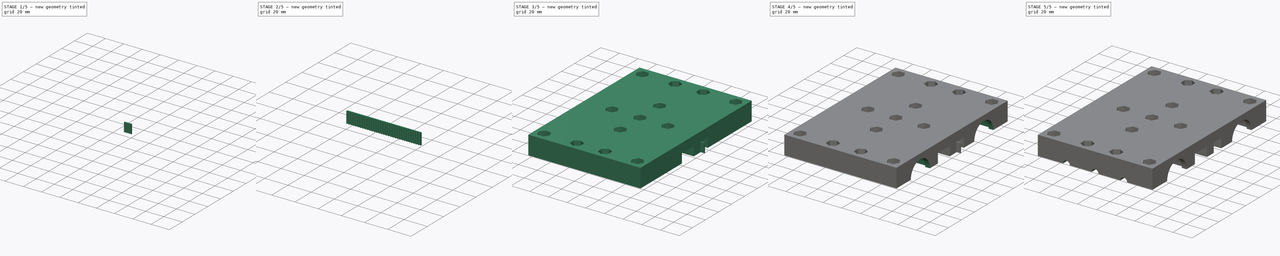
[diagram: build sequence overview — one tinted view per stage of 5, left to right]
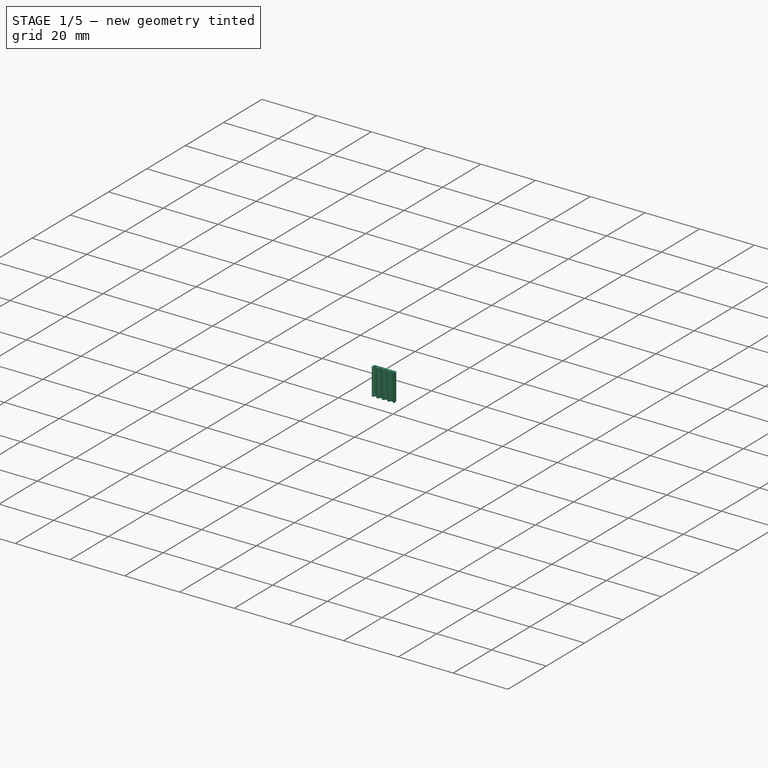
[diagram: stage 1 of 5 — iso view after this stage's code; geometry added in this stage tinted green]
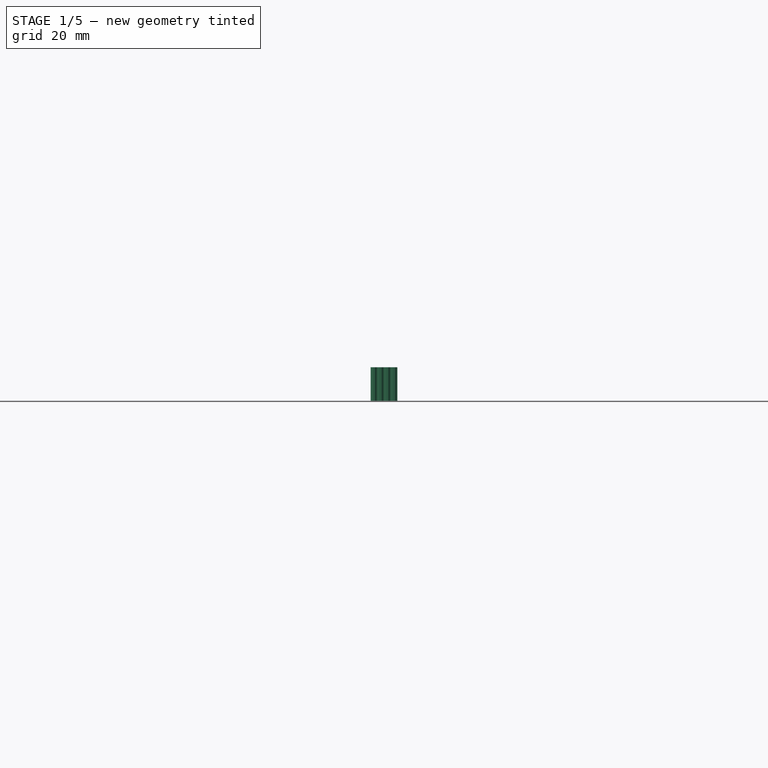
[diagram: stage 1 of 5 — front view after this stage's code; geometry added in this stage tinted green]
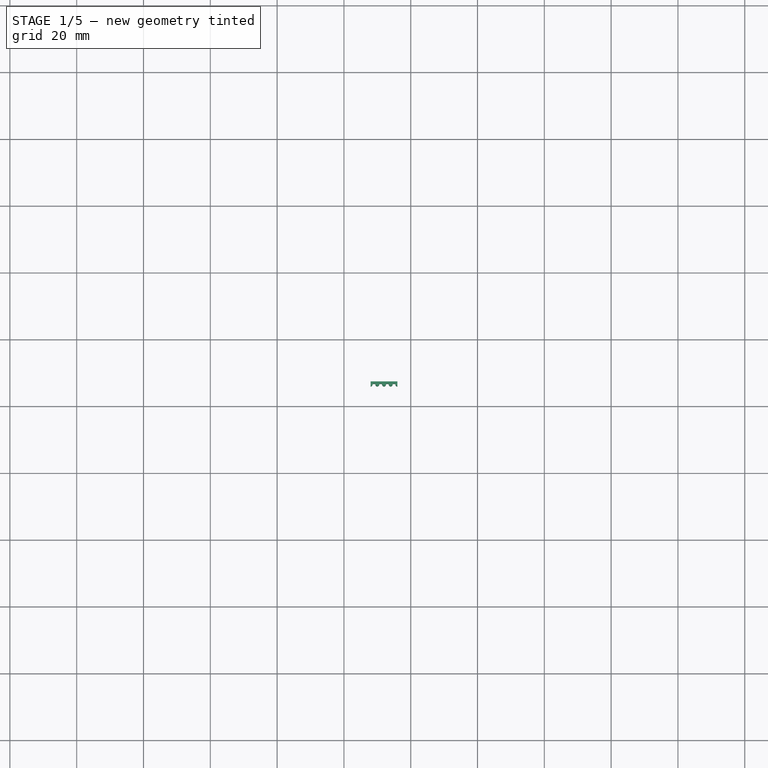
[diagram: stage 1 of 5 — top view after this stage's code; geometry added in this stage tinted green]
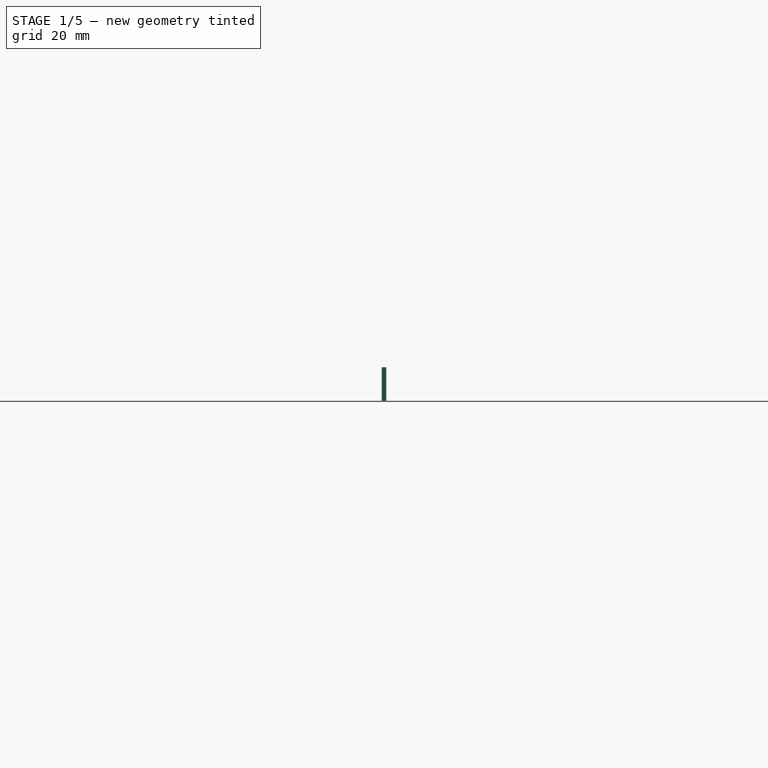
[diagram: stage 1 of 5 — right view after this stage's code; geometry added in this stage tinted green]
FCSTD DOCUMENT  (FreeCAD 0.16R6712 (Git))
Label: cnc_torch_carriage_v19_10_test
License: All rights reserved
LicenseURL: http://en.wikipedia.org/wiki/All_rights_reserved
objects: Sketcher::SketchObject×16, PartDesign::Pocket×14, Part::MultiFuse×6, Part::FeaturePython×5, PartDesign::Pad×2, Spreadsheet::Sheet×1, Part::Mirroring×1, Part::Cut×1
note: 61 computed .brp shape members not serialized (recipe doc carries the construction recipe); baked Part::Feature solids carry a one-line shape summary decoded from their .brp

FEATURE [Sketcher::SketchObject] Sketch014  label="BeltHolderSketch"
  sketch-geometry (24):
    g0: LineSegment [constr] StartX=0 StartY=6 StartZ=0 EndX=2 EndY=6 EndZ=0
    g1: LineSegment [constr] StartX=2 StartY=6 StartZ=0 EndX=2 EndY=6.75 EndZ=0
    g2: LineSegment [constr] StartX=2 StartY=6.75 StartZ=0 EndX=0 EndY=6.75 EndZ=0
    g3: LineSegment [constr] StartX=0 StartY=6.75 StartZ=0 EndX=0 EndY=6 EndZ=0
    g4: LineSegment [constr] StartX=2 StartY=6.75 StartZ=0 EndX=2.4 EndY=6.75 EndZ=0
    g5: LineSegment [constr] StartX=0 StartY=6.75 StartZ=0 EndX=-0.4 EndY=6.75 EndZ=0
    g6: GeomPoint [constr] X=0 Y=6 Z=0
    g7: ArcOfCircle CenterX=0 CenterY=6.56117 CenterZ=0 NormalX=0 NormalY=0 NormalZ=1 Radius=0.561168 StartAngle=4.71239 EndAngle=5.67385
    g8: ArcOfCircle CenterX=-0.4 CenterY=6.75 CenterZ=0 NormalX=0 NormalY=0 NormalZ=1 Radius=1 StartAngle=5.748 EndAngle=6.13262
    g9: ArcOfCircle CenterX=0.738686 CenterY=6.6 CenterZ=0 NormalX=0 NormalY=0 NormalZ=1 Radius=0.15 StartAngle=1.5708 EndAngle=3.14159
    g10: ArcOfCircle CenterX=2 CenterY=6.56117 CenterZ=0 NormalX=0 NormalY=0 NormalZ=1 Radius=0.561168 StartAngle=3.75093 EndAngle=4.71239
    g11: LineSegment [constr] StartX=0.460174 StartY=6.24 StartZ=0 EndX=1.53983 EndY=6.24 EndZ=0
    g12: ArcOfCircle CenterX=2.4 CenterY=6.75 CenterZ=0 NormalX=0 NormalY=0 NormalZ=1 Radius=1 StartAngle=3.29216 EndAngle=3.67678
    g13: LineSegment [constr] StartX=0.460174 StartY=6.24 StartZ=0 EndX=0 EndY=6.24 EndZ=0
    g14: LineSegment [constr] StartX=1.53983 StartY=6.24 StartZ=0 EndX=2 EndY=6.24 EndZ=0
    g15: LineSegment [constr] StartX=0.588686 StartY=6.6 StartZ=0 EndX=1.41131 EndY=6.6 EndZ=0
    g16: GeomPoint [constr] X=1.26131 Y=6.6 Z=0
    g17: ArcOfCircle CenterX=1.26131 CenterY=6.6 CenterZ=0 NormalX=0 NormalY=0 NormalZ=1 Radius=0.15 StartAngle=0 EndAngle=1.57082
    g18: LineSegment StartX=0.738686 StartY=6.75 StartZ=0 EndX=1.26131 EndY=6.75 EndZ=0
    g19: LineSegment [constr] StartX=0.738686 StartY=6.6 StartZ=0 EndX=0.738686 EndY=6.75 EndZ=0
    g20: GeomPoint [constr] X=0 Y=6 Z=0
    g21: LineSegment StartX=0 StartY=6 StartZ=0 EndX=0 EndY=7.38 EndZ=0
    g22: LineSegment StartX=2 StartY=6 StartZ=0 EndX=2 EndY=7.38 EndZ=0
    g23: LineSegment StartX=0 StartY=7.38 StartZ=0 EndX=2 EndY=7.38 EndZ=0
  constraints (65):
    c: Coincident(g3,g0)
    c: Horizontal(g11)
    c: Coincident(g11,g7)
    c: Coincident(g11,g10)
    c: DistanceX(g2,g1) = 2
    c: Equal(g7,g10)
    c: Radius(g8) = 1
    c: Equal(g12,g8)
    c: Coincident(g8,g9)
    c: Coincident(g7,g8)
    c: Vertical(g3)
    c: Horizontal(g0)
    c: Horizontal(g2)
    c: Vertical(g1)
    c: Horizontal(g4)
    c: Horizontal(g5)
    c: PointOnObject(g9,g2)
    c: Radius(g9) = 0.15
    c: Coincident(g4,g12)
    c: DistanceX(g1,g4) = 0.4
    c: Coincident(g0,g1)
    c: Coincident(g0,g10)
    c: Coincident(g10,g12)
    c: Coincident(g5,g8)
    c: Coincident(g2,g3)
    c: Coincident(g2,g5)
    c: Coincident(g1,g2)
    c: Coincident(g1,g4)
    c: DistanceY(g1,g1) = 0.75
    c: Coincident(g0,g6)
    c: Coincident(g0,g7)
    c: Coincident(g13,g7)
    c: Horizontal(g13)
    c: PointOnObject(g13,g3)
    c: Coincident(g14,g10)
    c: Horizontal(g14)
    c: PointOnObject(g14,g1)
    c: Equal(g13,g14)
    c: Coincident(g15,g8)
    c: Coincident(g15,g12)
    c: Horizontal(g15)
    c: PointOnObject(g7,g3)
    c: DistanceY(g12,g1) = 0.15
    c: PointOnObject(g16,g15)
    c: DistanceX(g16,g12) = 0.15
    c: Coincident(g17,g16)
    c: Coincident(g18,g9)
    c: Vertical(g19)
    c: Coincident(g19,g9)
    c: Coincident(g19,g9)
    c: PointOnObject(g17,g2)
    c: Coincident(g18,g17)
    c: DistanceY(g0,g14) = 0.24
    c: Coincident(g17,g12)
    c: PointOnObject(g20,g-2)
    c: DistanceY(g-1,g20) = 6
    c: Coincident(g20,g0)
    c: Coincident(g21,g0)
    c: Vertical(g21)
    c: Coincident(g22,g0)
    c: Vertical(g22)
    c: Equal(g21,g22)
    c: DistanceY(g0,g21) = 1.38
    c: Coincident(g23,g21)
    c: Coincident(g23,g22)
FEATURE [PartDesign::Pad] Pad001  label="BeltHolderPad"
  Length = 10
  Length2 = 100
  Sketch = -> Sketch014
  Type = 0
FEATURE [Part::FeaturePython] Clone  label="Clone of BeltHolderPad"  # Draft clone (typed FeaturePython)
  Objects = -> [Pad001]
  Placement = pos=(2,0,0) rot=(0,0,1;0rad)
  Scale = (1,1,1)
FEATURE [Part::MultiFuse] Fusion003  label="BeltHolderFusion1"
  Shapes = -> [Pad001,Clone]
FEATURE [Part::FeaturePython] Clone001  label="Clone of BeltHolderFusion1"  # Draft clone (typed FeaturePython)
  Objects = -> [Fusion003]
  Placement = pos=(4,0,0) rot=(0,0,1;0rad)
  Scale = (1,1,1)
FEATURE [Part::MultiFuse] Fusion004  label="BeltHolderFusion2"
  Shapes = -> [Fusion003,Clone001]
FEATURE [Part::FeaturePython] Clone002  label="Clone of BeltHolderFusion2"  # Draft clone (typed FeaturePython)
  Objects = -> [Fusion004]
  Placement = pos=(8,0,0) rot=(0,0,1;0rad)
  Scale = (1,1,1)
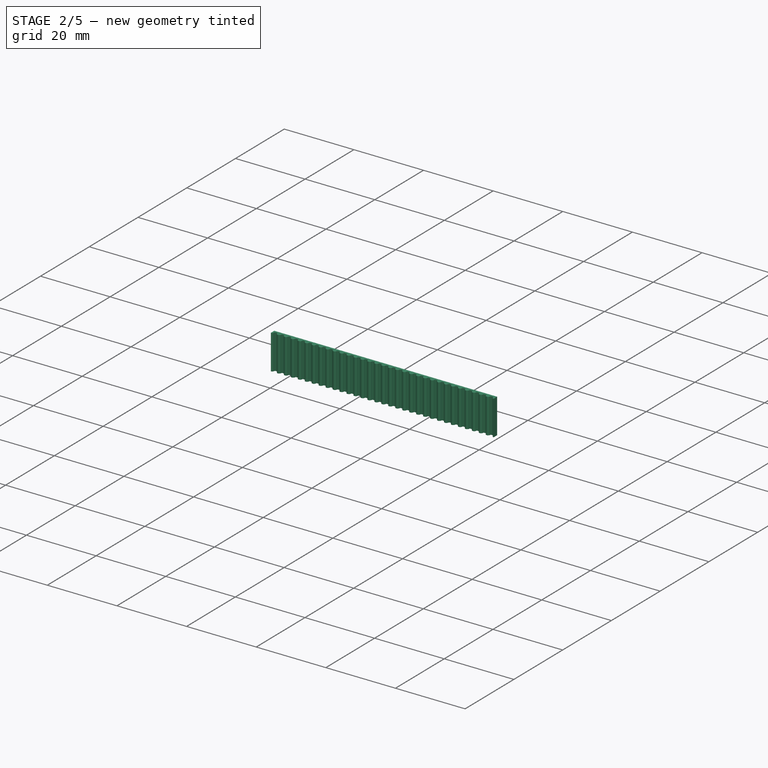
[diagram: stage 2 of 5 — iso view after this stage's code; geometry added in this stage tinted green]
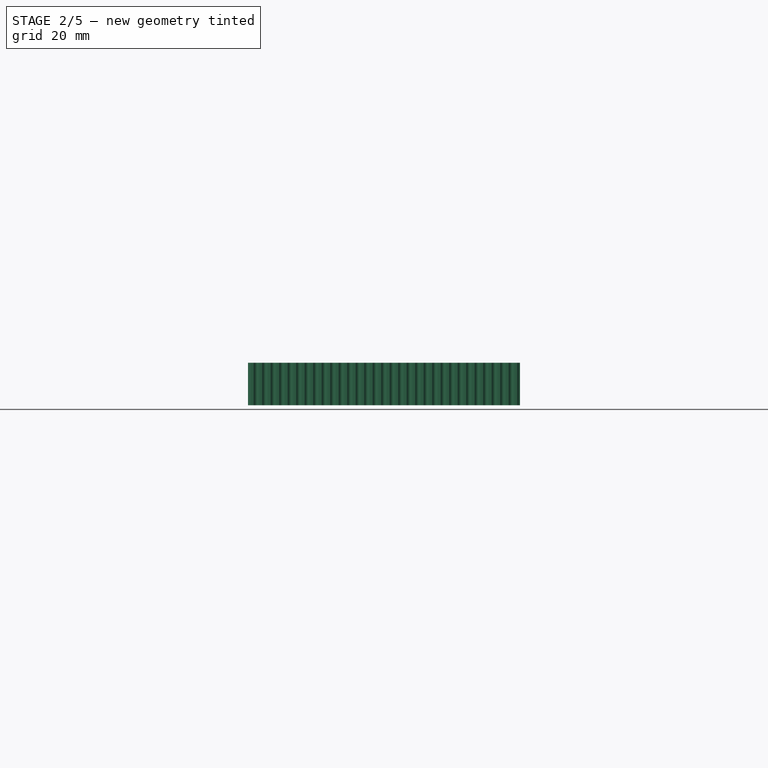
[diagram: stage 2 of 5 — front view after this stage's code; geometry added in this stage tinted green]
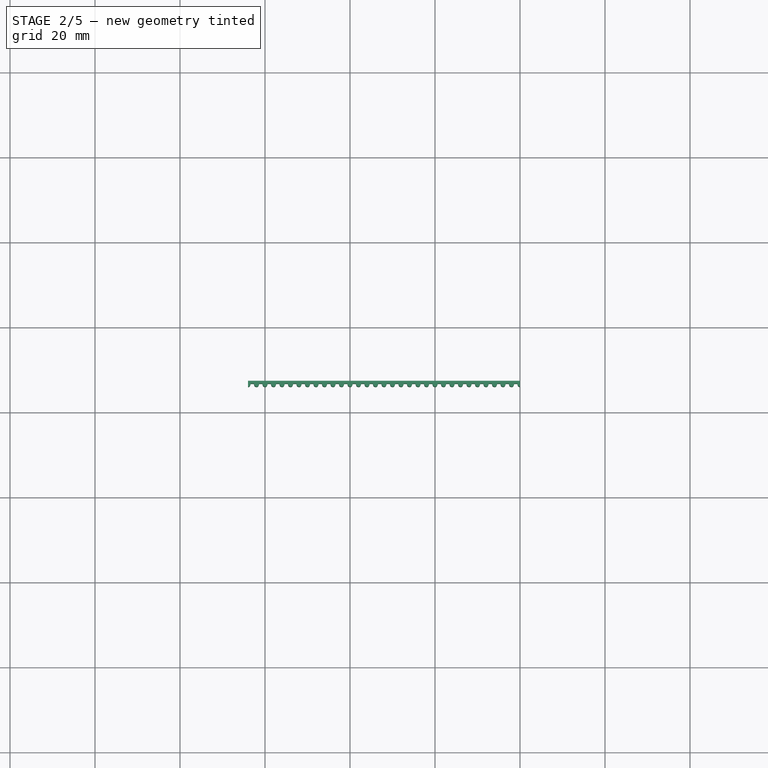
[diagram: stage 2 of 5 — top view after this stage's code; geometry added in this stage tinted green]
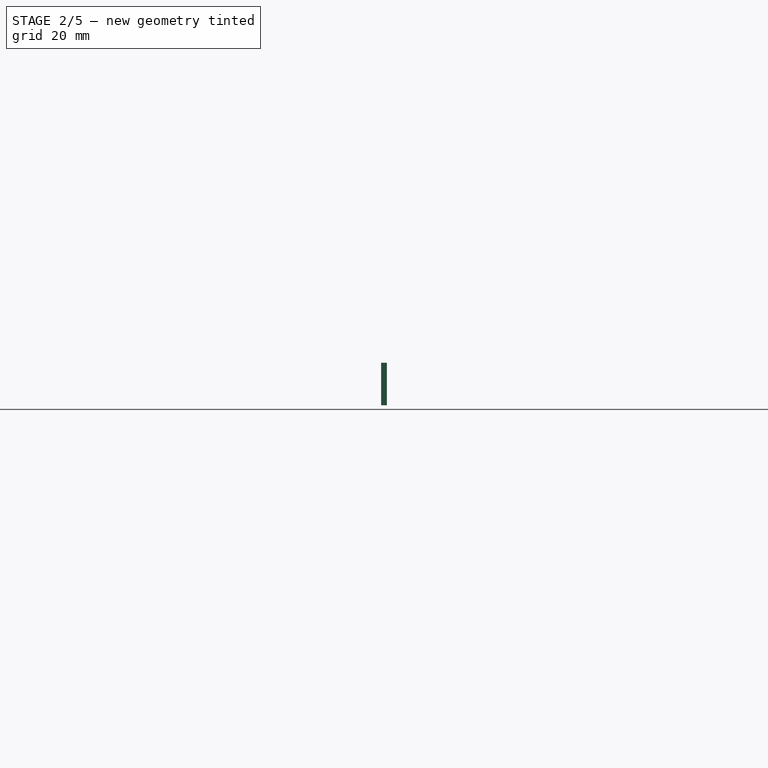
[diagram: stage 2 of 5 — right view after this stage's code; geometry added in this stage tinted green]
FEATURE [Part::MultiFuse] Fusion005  label="BeltHolderFusion3"
  Shapes = -> [Fusion004,Clone002]
FEATURE [Part::FeaturePython] Clone003  label="Clone of BeltHolderFusion3"  # Draft clone (typed FeaturePython)
  Objects = -> [Fusion005]
  Placement = pos=(16,0,0) rot=(0,0,1;0rad)
  Scale = (1,1,1)
FEATURE [Part::MultiFuse] Fusion006  label="BeltHolderFusion4"
  Shapes = -> [Fusion005,Clone003]
FEATURE [Part::FeaturePython] Clone004  label="Clone of BeltHolderFusion4"  # Draft clone (typed FeaturePython)
  Objects = -> [Fusion006]
  Placement = pos=(32,0,0) rot=(0,0,1;0rad)
  Scale = (1,1,1)
FEATURE [Part::MultiFuse] Fusion007  label="BeltHolderFusion5"
  Shapes = -> [Fusion006,Clone004]
FEATURE [Part::Mirroring] Part__Mirroring003  label="BeltHolderFusion5 (Mirror #4)"
  Base = (0,0,0)
  Normal = (1,0,0)
  Source = -> Fusion007
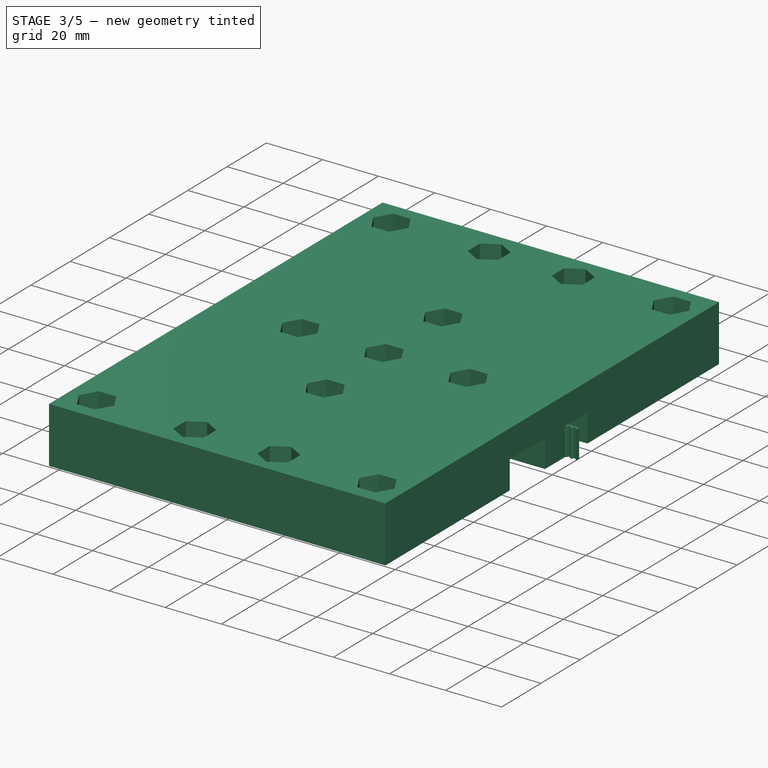
[diagram: stage 3 of 5 — iso view after this stage's code; geometry added in this stage tinted green]
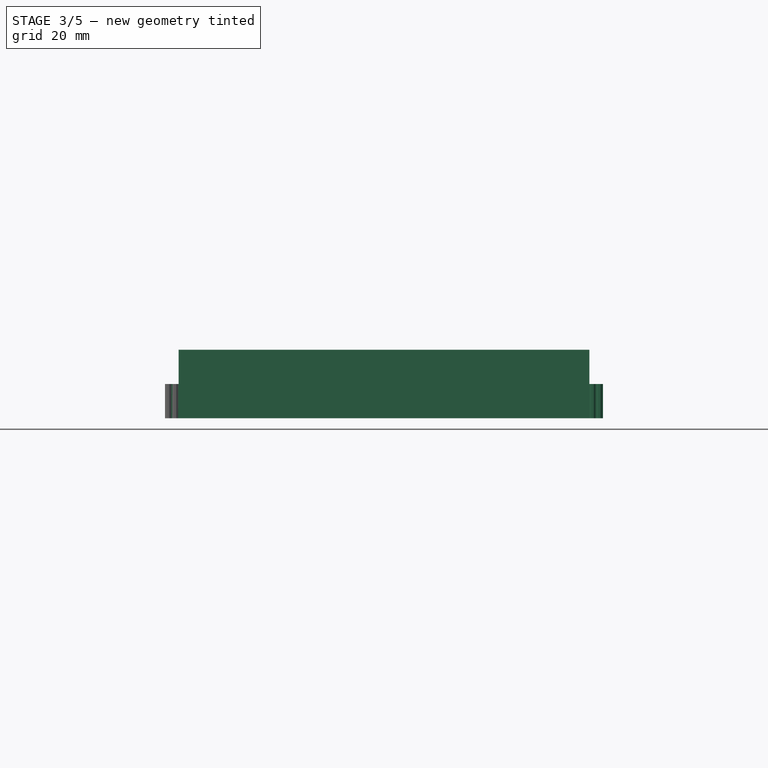
[diagram: stage 3 of 5 — front view after this stage's code; geometry added in this stage tinted green]
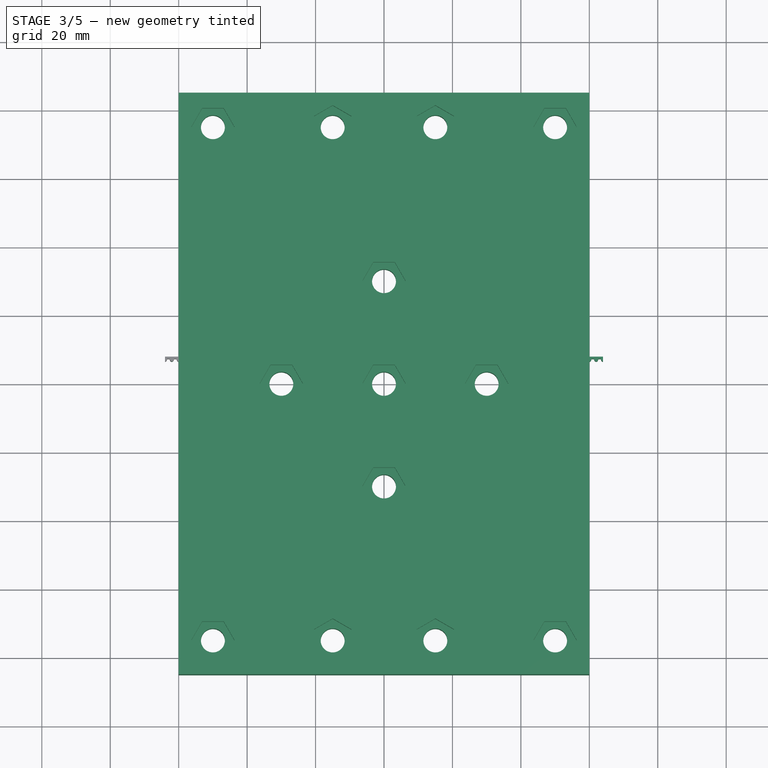
[diagram: stage 3 of 5 — top view after this stage's code; geometry added in this stage tinted green]
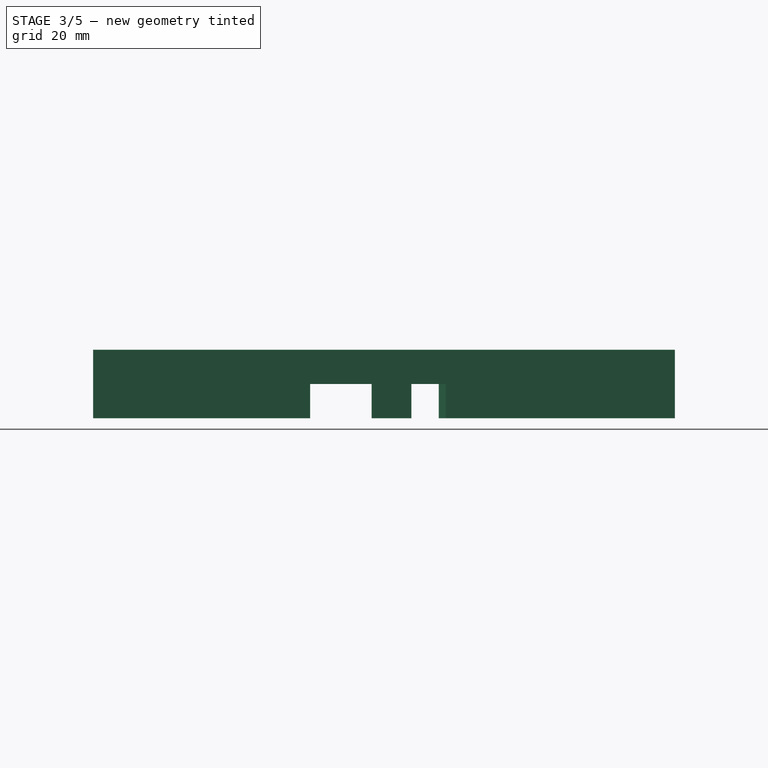
[diagram: stage 3 of 5 — right view after this stage's code; geometry added in this stage tinted green]
FEATURE [Spreadsheet::Sheet] Spreadsheet  label="prop"
  cells = A1=carriage length; B1(car_l)=120; A2=carriage width; B2(car_w)=170; A3=carriage thickness; B3(car_t)=20; A4=nutcatcher & bolt hole spacing; B4(nut_bolt_space)=60; A5=nut & bolt corner spacing width; B5(nut_bolt_corner_w)=100; A6=nut & bolt corner spacing height; B6(nut_bolt_corner_h)=150; A7=nut & bolt middle spacing; B7(nut_bolt_mid_space)=15; A8=nutcatcher radius; B8(nut_rad)=6.3; A9=nutcatcher depth; B9(nut_d)=6.8; A10=bolt hole radius; B10(bolt_rad)=3.5; A11=bolt side hole depth 1; B11(bolt_side_d)=8; A12=bolt side hole depth 2; B12(bolt_side_d_2)=4; A14=belt passage of center; B14(belt_pas_oc)=3.6; A15=belt passage height; B15(belt_pas_h)=18; A16=belt fastning of center; B16(belt_fast_oc)=8; A17=belt fastning wide; B17(belt_fast_w)=10; A18=belt fastning narrow; B18(belt_fast_n)=8; A19=belt passage & fastning depth; B19(belt_pas_fast_d)=10; A21=rods & bushings spacing; B21(rod_bush_space)=97; A22=rod holes radius; B22(rod_hole_r)=14.5; A23=rod holes depth; B23(rod_hole_d)=5; A24=bushing radius; B24(bush_r)=17.1; A25=bushing length; B25(bush_l)=33
FEATURE [Sketcher::SketchObject] Sketch  label="carriage_block_sketch"
  expr: Constraints[11] = prop.car_w
  expr: Constraints[10] = prop.car_l
  sketch-geometry (4):
    g0: LineSegment StartX=-60 StartY=85 StartZ=0 EndX=60 EndY=85 EndZ=0
    g1: LineSegment StartX=60 StartY=85 StartZ=0 EndX=60 EndY=-85 EndZ=0
    g2: LineSegment StartX=60 StartY=-85 StartZ=0 EndX=-60 EndY=-85 EndZ=0
    g3: LineSegment StartX=-60 StartY=-85 StartZ=0 EndX=-60 EndY=85 EndZ=0
  constraints (12):
    c: Coincident(g0,g1)
    c: Coincident(g1,g2)
    c: Coincident(g2,g3)
    c: Coincident(g3,g0)
    c: Horizontal(g0)
    c: Horizontal(g2)
    c: Vertical(g1)
    c: Vertical(g3)
    c: Symmetric(g0,g0,g-2)
    c: Symmetric(g0,g2,g-1)
    c: DistanceX(g0,g0) = 120
    c: DistanceY(g3,g3) = 170
FEATURE [PartDesign::Pad] Pad  label="carriage_block_pad"
  Length = 20
  Length2 = 100
  Sketch = -> Sketch
  Type = 0
  expr: Length = prop.car_t
FEATURE [Sketcher::SketchObject] Sketch001  label="nutcatchers_front_sketch"
  Placement = pos=(0,0,20) rot=(0,0,1;0rad)
  Support = -> Pad [Face6]
  expr: Constraints[296] = prop.nut_bolt_mid_space
  expr: Constraints[295] = prop.nut_bolt_mid_space
  expr: Constraints[294] = prop.nut_bolt_mid_space
  expr: Constraints[293] = prop.nut_bolt_mid_space
  expr: Constraints[131] = prop.nut_bolt_corner_h
  expr: Constraints[130] = prop.nut_bolt_corner_w
  expr: Constraints[120] = prop.nut_rad
  expr: Constraints[15] = prop.nut_bolt_space
  sketch-geometry (103):
    g0: LineSegment [constr] StartX=-30 StartY=30 StartZ=0 EndX=30 EndY=30 EndZ=0
    g1: LineSegment [constr] StartX=30 StartY=30 StartZ=0 EndX=30 EndY=-30 EndZ=0
    g2: LineSegment [constr] StartX=30 StartY=-30 StartZ=0 EndX=-30 EndY=-30 EndZ=0
    g3: LineSegment [constr] StartX=-30 StartY=-30 StartZ=0 EndX=-30 EndY=30 EndZ=0
    g4: GeomPoint [constr] X=0 Y=30 Z=0
    g5: GeomPoint [constr] X=-30 Y=0 Z=0
    g6: GeomPoint [constr] X=30 Y=0 Z=0
    g7: GeomPoint [constr] X=0 Y=-30 Z=0
    g8: LineSegment StartX=3.15 StartY=35.456 StartZ=0 EndX=-3.15 EndY=35.456 EndZ=0
    g9: LineSegment StartX=-3.15 StartY=35.456 StartZ=0 EndX=-6.3 EndY=30 EndZ=0
    g10: LineSegment StartX=-6.3 StartY=30 StartZ=0 EndX=-3.15 EndY=24.544 EndZ=0
    g11: LineSegment StartX=-3.15 StartY=24.544 StartZ=0 EndX=3.15 EndY=24.544 EndZ=0
    g12: LineSegment StartX=3.15 StartY=24.544 StartZ=0 EndX=6.3 EndY=30 EndZ=0
    g13: LineSegment StartX=6.3 StartY=30 StartZ=0 EndX=3.15 EndY=35.456 EndZ=0
    g14: Circle [constr] CenterX=0 CenterY=30 CenterZ=0 NormalX=0 NormalY=0 NormalZ=1 Radius=6.3
    g15: LineSegment StartX=-26.85 StartY=5.45596 StartZ=0 EndX=-33.15 EndY=5.45596 EndZ=0
    g16: LineSegment StartX=-33.15 StartY=5.45596 StartZ=0 EndX=-36.3 EndY=0 EndZ=0
    g17: LineSegment StartX=-36.3 StartY=0 StartZ=0 EndX=-33.15 EndY=-5.45596 EndZ=0
    g18: LineSegment StartX=-33.15 StartY=-5.45596 StartZ=0 EndX=-26.85 EndY=-5.45596 EndZ=0
    g19: LineSegment StartX=-26.85 StartY=-5.45596 StartZ=0 EndX=-23.7 EndY=0 EndZ=0
    g20: LineSegment StartX=-23.7 StartY=0 StartZ=0 EndX=-26.85 EndY=5.45596 EndZ=0
    g21: Circle [constr] CenterX=-30 CenterY=0 CenterZ=0 NormalX=0 NormalY=0 NormalZ=1 Radius=6.3
    g22: LineSegment StartX=3.15 StartY=5.45596 StartZ=0 EndX=-3.15 EndY=5.45596 EndZ=0
    g23: LineSegment StartX=-3.15 StartY=5.45596 StartZ=0 EndX=-6.3 EndY=0 EndZ=0
    g24: LineSegment StartX=-6.3 StartY=0 StartZ=0 EndX=-3.15 EndY=-5.45596 EndZ=0
    g25: LineSegment StartX=-3.15 StartY=-5.45596 StartZ=0 EndX=3.15 EndY=-5.45596 EndZ=0
    g26: LineSegment StartX=3.15 StartY=-5.45596 StartZ=0 EndX=6.3 EndY=0 EndZ=0
    g27: LineSegment StartX=6.3 StartY=0 StartZ=0 EndX=3.15 EndY=5.45596 EndZ=0
    g28: Circle [constr] CenterX=0 CenterY=0 CenterZ=0 NormalX=0 NormalY=0 NormalZ=1 Radius=6.3
    g29: LineSegment StartX=33.15 StartY=5.45596 StartZ=0 EndX=26.85 EndY=5.45596 EndZ=0
    g30: LineSegment StartX=26.85 StartY=5.45596 StartZ=0 EndX=23.7 EndY=0 EndZ=0
    g31: LineSegment StartX=23.7 StartY=0 StartZ=0 EndX=26.85 EndY=-5.45596 EndZ=0
    g32: LineSegment StartX=26.85 StartY=-5.45596 StartZ=0 EndX=33.15 EndY=-5.45596 EndZ=0
    g33: LineSegment StartX=33.15 StartY=-5.45596 StartZ=0 EndX=36.3 EndY=0 EndZ=0
    g34: LineSegment StartX=36.3 StartY=0 StartZ=0 EndX=33.15 EndY=5.45596 EndZ=0
    g35: Circle [constr] CenterX=30 CenterY=0 CenterZ=0 NormalX=0 NormalY=0 NormalZ=1 Radius=6.3
    g36: LineSegment StartX=3.15 StartY=-24.544 StartZ=0 EndX=-3.15 EndY=-24.544 EndZ=0
    g37: LineSegment StartX=-3.15 StartY=-24.544 StartZ=0 EndX=-6.3 EndY=-30 EndZ=0
    g38: LineSegment StartX=-6.3 StartY=-30 StartZ=0 EndX=-3.15 EndY=-35.456 EndZ=0
    g39: LineSegment StartX=-3.15 StartY=-35.456 StartZ=0 EndX=3.15 EndY=-35.456 EndZ=0
    g40: LineSegment StartX=3.15 StartY=-35.456 StartZ=0 EndX=6.3 EndY=-30 EndZ=0
    g41: LineSegment StartX=6.3 StartY=-30 StartZ=0 EndX=3.15 EndY=-24.544 EndZ=0
    g42: Circle [constr] CenterX=0 CenterY=-30 CenterZ=0 NormalX=0 NormalY=0 NormalZ=1 Radius=6.3
    g43: LineSegment [constr] StartX=-50 StartY=75 StartZ=0 EndX=50 EndY=75 EndZ=0
    g44: LineSegment [constr] StartX=50 StartY=75 StartZ=0 EndX=50 EndY=-75 EndZ=0
    g45: LineSegment [constr] StartX=50 StartY=-75 StartZ=0 EndX=-50 EndY=-75 EndZ=0
    g46: LineSegment [constr] StartX=-50 StartY=-75 StartZ=0 EndX=-50 EndY=75 EndZ=0
    g47: LineSegment StartX=-46.85 StartY=80.456 StartZ=0 EndX=-53.15 EndY=80.456 EndZ=0
    g48: LineSegment StartX=-53.15 StartY=80.456 StartZ=0 EndX=-56.3 EndY=75 EndZ=0
    g49: LineSegment StartX=-56.3 StartY=75 StartZ=0 EndX=-53.15 EndY=69.544 EndZ=0
    g50: LineSegment StartX=-53.15 StartY=69.544 StartZ=0 EndX=-46.85 EndY=69.544 EndZ=0
    g51: LineSegment StartX=-46.85 StartY=69.544 StartZ=0 EndX=-43.7 EndY=75 EndZ=0
    g52: LineSegment StartX=-43.7 StartY=75 StartZ=0 EndX=-46.85 EndY=80.456 EndZ=0
    g53: Circle [constr] CenterX=-50 CenterY=75 CenterZ=0 NormalX=0 NormalY=0 NormalZ=1 Radius=6.3
    g54: LineSegment StartX=53.15 StartY=80.456 StartZ=0 EndX=46.85 EndY=80.456 EndZ=0
    g55: LineSegment StartX=46.85 StartY=80.456 StartZ=0 EndX=43.7 EndY=75 EndZ=0
    g56: LineSegment StartX=43.7 StartY=75 StartZ=0 EndX=46.85 EndY=69.544 EndZ=0
    g57: LineSegment StartX=46.85 StartY=69.544 StartZ=0 EndX=53.15 EndY=69.544 EndZ=0
    g58: LineSegment StartX=53.15 StartY=69.544 StartZ=0 EndX=56.3 EndY=75 EndZ=0
    g59: LineSegment StartX=56.3 StartY=75 StartZ=0 EndX=53.15 EndY=80.456 EndZ=0
    g60: Circle [constr] CenterX=50 CenterY=75 CenterZ=0 NormalX=0 NormalY=0 NormalZ=1 Radius=6.3
    g61: LineSegment StartX=-46.85 StartY=-69.544 StartZ=0 EndX=-53.15 EndY=-69.544 EndZ=0
    g62: LineSegment StartX=-53.15 StartY=-69.544 StartZ=0 EndX=-56.3 EndY=-75 EndZ=0
    g63: LineSegment StartX=-56.3 StartY=-75 StartZ=0 EndX=-53.15 EndY=-80.456 EndZ=0
    g64: LineSegment StartX=-53.15 StartY=-80.456 StartZ=0 EndX=-46.85 EndY=-80.456 EndZ=0
    g65: LineSegment StartX=-46.85 StartY=-80.456 StartZ=0 EndX=-43.7 EndY=-75 EndZ=0
    g66: LineSegment StartX=-43.7 StartY=-75 StartZ=0 EndX=-46.85 EndY=-69.544 EndZ=0
    g67: Circle [constr] CenterX=-50 CenterY=-75 CenterZ=0 NormalX=0 NormalY=0 NormalZ=1 Radius=6.3
    g68: LineSegment StartX=53.15 StartY=-80.456 StartZ=0 EndX=56.3 EndY=-75 EndZ=0
    g69: LineSegment StartX=56.3 StartY=-75 StartZ=0 EndX=53.15 EndY=-69.544 EndZ=0
    g70: LineSegment StartX=53.15 StartY=-69.544 StartZ=0 EndX=46.85 EndY=-69.544 EndZ=0
    g71: LineSegment StartX=46.85 StartY=-69.544 StartZ=0 EndX=43.7 EndY=-75 EndZ=0
    g72: LineSegment StartX=43.7 StartY=-75 StartZ=0 EndX=46.85 EndY=-80.456 EndZ=0
    g73: LineSegment StartX=46.85 StartY=-80.456 StartZ=0 EndX=53.15 EndY=-80.456 EndZ=0
    g74: Circle [constr] CenterX=50 CenterY=-75 CenterZ=0 NormalX=0 NormalY=0 NormalZ=1 Radius=6.3
    g75: LineSegment StartX=-15 StartY=81.3 StartZ=0 EndX=-20.456 EndY=78.15 EndZ=0
    g76: LineSegment StartX=-20.456 StartY=78.15 StartZ=0 EndX=-20.456 EndY=71.85 EndZ=0
    g77: LineSegment StartX=-20.456 StartY=71.85 StartZ=0 EndX=-15 EndY=68.7 EndZ=0
    g78: LineSegment StartX=-15 StartY=68.7 StartZ=0 EndX=-9.54404 EndY=71.85 EndZ=0
    g79: LineSegment StartX=-9.54404 StartY=71.85 StartZ=0 EndX=-9.54404 EndY=78.15 EndZ=0
    g80: LineSegment StartX=-9.54404 StartY=78.15 StartZ=0 EndX=-15 EndY=81.3 EndZ=0
    g81: Circle [constr] CenterX=-15 CenterY=75 CenterZ=0 NormalX=0 NormalY=0 NormalZ=1 Radius=6.3
    g82: LineSegment StartX=15 StartY=81.3 StartZ=0 EndX=9.54404 EndY=78.15 EndZ=0
    g83: LineSegment StartX=9.54404 StartY=78.15 StartZ=0 EndX=9.54404 EndY=71.85 EndZ=0
    g84: LineSegment StartX=9.54404 StartY=71.85 StartZ=0 EndX=15 EndY=68.7 EndZ=0
    g85: LineSegment StartX=15 StartY=68.7 StartZ=0 EndX=20.456 EndY=71.85 EndZ=0
    g86: LineSegment StartX=20.456 StartY=71.85 StartZ=0 EndX=20.456 EndY=78.15 EndZ=0
    g87: LineSegment StartX=20.456 StartY=78.15 StartZ=0 EndX=15 EndY=81.3 EndZ=0
    g88: Circle [constr] CenterX=15 CenterY=75 CenterZ=0 NormalX=0 NormalY=0 NormalZ=1 Radius=6.3
    g89: LineSegment StartX=-9.54404 StartY=-71.85 StartZ=0 EndX=-15 EndY=-68.7 EndZ=0
    g90: LineSegment StartX=-15 StartY=-68.7 StartZ=0 EndX=-20.456 EndY=-71.85 EndZ=0
    g91: LineSegment StartX=-20.456 StartY=-71.85 StartZ=0 EndX=-20.456 EndY=-78.15 EndZ=0
    g92: LineSegment StartX=-20.456 StartY=-78.15 StartZ=0 EndX=-15 EndY=-81.3 EndZ=0
    g93: LineSegment StartX=-15 StartY=-81.3 StartZ=0 EndX=-9.54404 EndY=-78.15 EndZ=0
    g94: LineSegment StartX=-9.54404 StartY=-78.15 StartZ=0 EndX=-9.54404 EndY=-71.85 EndZ=0
    g95: Circle [constr] CenterX=-15 CenterY=-75 CenterZ=0 NormalX=0 NormalY=0 NormalZ=1 Radius=6.3
    g96: LineSegment StartX=20.456 StartY=-71.85 StartZ=0 EndX=15 EndY=-68.7 EndZ=0
    g97: LineSegment StartX=15 StartY=-68.7 StartZ=0 EndX=9.54404 EndY=-71.85 EndZ=0
    g98: LineSegment StartX=9.54404 StartY=-71.85 StartZ=0 EndX=9.54404 EndY=-78.15 EndZ=0
    g99: LineSegment StartX=9.54404 StartY=-78.15 StartZ=0 EndX=15 EndY=-81.3 EndZ=0
    g100: LineSegment StartX=15 StartY=-81.3 StartZ=0 EndX=20.456 EndY=-78.15 EndZ=0
    g101: LineSegment StartX=20.456 StartY=-78.15 StartZ=0 EndX=20.456 EndY=-71.85 EndZ=0
    g102: Circle [constr] CenterX=15 CenterY=-75 CenterZ=0 NormalX=0 NormalY=0 NormalZ=1 Radius=6.3
  constraints (245):
    c: Horizontal(g0)
    c: Horizontal(g2)
    c: Vertical(g1)
    c: Vertical(g3)
    c: Symmetric(g0,g0,g-2)
    c: Symmetric(g0,g2,g-1)
    c: PointOnObject(g4,g0)
    c: PointOnObject(g5,g3)
    c: PointOnObject(g6,g1)
    c: PointOnObject(g7,g2)
    c: PointOnObject(g7,g-2)
    c: PointOnObject(g4,g-2)
    c: PointOnObject(g6,g-1)
    c: PointOnObject(g5,g-1)
    c: Equal(g3,g0)
    c: DistanceX(g0,g0) = 60
    c: Coincident(g8,g9)
    c: Coincident(g9,g10)
    c: Coincident(g10,g11)
    c: Coincident(g11,g12)
    c: Coincident(g12,g13)
    c: Coincident(g13,g8)
    c: Equal(g8, g9-g13) x5
    c: PointOnObject(g8,g14)
    c: PointOnObject(g9,g14)
    c: PointOnObject(g10,g14)
    c: PointOnObject(g11,g14)
    c: PointOnObject(g12,g14)
    c: PointOnObject(g13,g14)
    c: Coincident(g14,g4)
    c: Horizontal(g8)
    c: Coincident(g15,g16)
    c: Coincident(g16,g17)
    c: Coincident(g17,g18)
    c: Coincident(g18,g19)
    c: Coincident(g19,g20)
    c: Coincident(g20,g15)
    c: Equal(g15, g16-g20) x5
    c: PointOnObject(g15,g21)
    c: PointOnObject(g16,g21)
    c: PointOnObject(g17,g21)
    c: PointOnObject(g18,g21)
    c: PointOnObject(g19,g21)
    c: PointOnObject(g20,g21)
    c: Coincident(g21,g5)
    c: Horizontal(g15)
    c: Coincident(g22,g23)
    c: Coincident(g23,g24)
    c: Coincident(g24,g25)
    c: Coincident(g25,g26)
    c: Coincident(g26,g27)
    c: Coincident(g27,g22)
    c: Equal(g22, g23-g27) x5
    c: PointOnObject(g22,g28)
    c: PointOnObject(g23,g28)
    c: PointOnObject(g24,g28)
    c: PointOnObject(g25,g28)
    c: PointOnObject(g26,g28)
    c: PointOnObject(g27,g28)
    c: Coincident(g28,g-1)
    c: Horizontal(g22)
    c: Coincident(g29,g30)
    c: Coincident(g30,g31)
    c: Coincident(g31,g32)
    c: Coincident(g32,g33)
    c: Coincident(g33,g34)
    c: Coincident(g34,g29)
    c: Equal(g29, g30-g34) x5
    c: PointOnObject(g29,g35)
    c: PointOnObject(g30,g35)
    c: PointOnObject(g31,g35)
    c: PointOnObject(g32,g35)
    c: PointOnObject(g33,g35)
    c: PointOnObject(g34,g35)
    c: Coincident(g35,g6)
    c: Horizontal(g29)
    c: Coincident(g36,g37)
    c: Coincident(g37,g38)
    c: Coincident(g38,g39)
    c: Coincident(g39,g40)
    c: Coincident(g40,g41)
    c: Coincident(g41,g36)
    c: Equal(g36, g37-g41) x5
    c: PointOnObject(g36,g42)
    c: PointOnObject(g37,g42)
    c: PointOnObject(g38,g42)
    c: PointOnObject(g39,g42)
    c: PointOnObject(g40,g42)
    c: PointOnObject(g41,g42)
    c: Coincident(g42,g7)
    c: Horizontal(g36)
    c: Equal(g35,g28)
    c: Equal(g28,g21)
    c: Coincident(g0,g1)
    c: Coincident(g2,g1)
    c: Coincident(g2,g3)
    c: Equal(g3,g0)
    c: Coincident(g0,g3)
    c: Equal(g42,g28)
    c: Equal(g14,g21)
    c: Radius(g14) = 6.3
    c: Coincident(g43,g44)
    c: Coincident(g44,g45)
    c: Coincident(g45,g46)
    c: Horizontal(g43)
    c: Horizontal(g45)
    c: Vertical(g44)
    c: Vertical(g46)
    c: Symmetric(g43,g43,g-2)
    c: Symmetric(g43,g45,g-1)
    c: DistanceX(g43,g43) = 100
    c: DistanceY(g46,g46) = 150
    c: Coincident(g43,g46)
    c: Coincident(g47,g48)
    c: Coincident(g48,g49)
    c: Coincident(g49,g50)
    c: Coincident(g50,g51)
    c: Coincident(g51,g52)
    c: Coincident(g52,g47)
    c: Equal(g47, g48-g52) x5
    c: PointOnObject(g47,g53)
    c: PointOnObject(g48,g53)
    c: PointOnObject(g49,g53)
    c: PointOnObject(g50,g53)
    c: PointOnObject(g51,g53)
    c: PointOnObject(g52,g53)
    c: Coincident(g53,g43)
    c: Coincident(g54,g55)
    c: Coincident(g55,g56)
    c: Coincident(g56,g57)
    c: Coincident(g57,g58)
    c: Coincident(g58,g59)
    c: Coincident(g59,g54)
    c: Equal(g54, g55-g59) x5
    c: PointOnObject(g54,g60)
    c: PointOnObject(g55,g60)
    c: PointOnObject(g56,g60)
    c: PointOnObject(g57,g60)
    c: PointOnObject(g58,g60)
    c: PointOnObject(g59,g60)
    c: Coincident(g60,g43)
    c: Coincident(g61,g62)
    c: Coincident(g62,g63)
    c: Coincident(g63,g64)
    c: Coincident(g64,g65)
    c: Coincident(g65,g66)
    c: Coincident(g66,g61)
    c: Equal(g61, g62-g66) x5
    c: PointOnObject(g61,g67)
    c: PointOnObject(g62,g67)
    c: PointOnObject(g63,g67)
    c: PointOnObject(g64,g67)
    c: PointOnObject(g65,g67)
    c: PointOnObject(g66,g67)
    c: Coincident(g67,g45)
    c: Coincident(g68,g69)
    c: Coincident(g69,g70)
    c: Coincident(g70,g71)
    c: Coincident(g71,g72)
    c: Coincident(g72,g73)
    c: Coincident(g73,g68)
    c: Equal(g68, g69-g73) x5
    c: PointOnObject(g68,g74)
    c: PointOnObject(g69,g74)
    c: PointOnObject(g70,g74)
    c: PointOnObject(g71,g74)
    c: PointOnObject(g72,g74)
    c: PointOnObject(g73,g74)
    c: Coincident(g74,g44)
    c: Horizontal(g73)
    c: Horizontal(g64)
    c: Horizontal(g47)
    c: Horizontal(g57)
    c: Equal(g60,g53)
    c: Equal(g53,g67)
    c: Equal(g67,g74)
    c: Equal(g74,g14)
    c: Coincident(g75,g76)
    c: Coincident(g76,g77)
    c: Coincident(g77,g78)
    c: Coincident(g78,g79)
    c: Coincident(g79,g80)
    c: Coincident(g80,g75)
    c: Equal(g75, g76-g80) x5
    c: PointOnObject(g75,g81)
    c: PointOnObject(g76,g81)
    c: PointOnObject(g77,g81)
    c: PointOnObject(g78,g81)
    c: PointOnObject(g79,g81)
    c: PointOnObject(g80,g81)
    c: PointOnObject(g81,g43)
    c: Vertical(g79)
    c: Coincident(g82,g83)
    c: Coincident(g83,g84)
    c: Coincident(g84,g85)
    c: Coincident(g85,g86)
    c: Coincident(g86,g87)
    c: Coincident(g87,g82)
    c: Equal(g82, g83-g87) x5
    c: PointOnObject(g82,g88)
    c: PointOnObject(g83,g88)
    c: PointOnObject(g84,g88)
    c: PointOnObject(g85,g88)
    c: PointOnObject(g86,g88)
    c: PointOnObject(g87,g88)
    c: PointOnObject(g88,g43)
    c: Vertical(g86)
    c: Coincident(g89,g90)
    c: Coincident(g90,g91)
    c: Coincident(g91,g92)
    c: Coincident(g92,g93)
    c: Coincident(g93,g94)
    c: Coincident(g94,g89)
    c: Equal(g89, g90-g94) x5
    c: PointOnObject(g89,g95)
    c: PointOnObject(g90,g95)
    c: PointOnObject(g91,g95)
    c: PointOnObject(g92,g95)
    c: PointOnObject(g93,g95)
    c: PointOnObject(g94,g95)
    c: PointOnObject(g95,g45)
    c: Vertical(g94)
    c: Coincident(g96,g97)
    c: Coincident(g97,g98)
    c: Coincident(g98,g99)
    c: Coincident(g99,g100)
    c: Coincident(g100,g101)
    c: Coincident(g101,g96)
    c: Equal(g96, g97-g101) x5
    c: PointOnObject(g96,g102)
    c: PointOnObject(g97,g102)
    c: PointOnObject(g98,g102)
    c: PointOnObject(g99,g102)
    c: PointOnObject(g100,g102)
    c: PointOnObject(g101,g102)
    c: PointOnObject(g102,g45)
    c: Vertical(g101)
    c: Equal(g102,g95)
    c: Equal(g95,g81)
    c: Equal(g81,g88)
    c: Equal(g88,g14)
    c: DistanceX(g81,g4) = 15
    c: DistanceX(g4,g88) = 15
    c: DistanceX(g95,g7) = 15
    c: DistanceX(g7,g102) = 15
FEATURE [PartDesign::Pocket] Pocket  label="nutcatchers_front_pocket"
  Length = 6.8
  Sketch = -> Sketch001
  Type = 0
  expr: Length = prop.nut_d
FEATURE [Sketcher::SketchObject] Sketch002  label="bolt_holes_front_sketch"
  Placement = pos=(0,0,13.2) rot=(0,0,1;0rad)
  Support = -> Pocket [Face92]
  expr: Constraints[60] = prop.nut_bolt_mid_space
  expr: Constraints[59] = prop.nut_bolt_mid_space
  expr: Constraints[58] = prop.nut_bolt_mid_space
  expr: Constraints[40] = prop.nut_bolt_corner_h
  expr: Constraints[39] = prop.nut_bolt_corner_w
  expr: Constraints[61] = prop.nut_bolt_mid_space
  expr: Constraints[19] = prop.nut_bolt_space
  sketch-geometry (25):
    g0: LineSegment [constr] StartX=-30 StartY=30 StartZ=0 EndX=30 EndY=30 EndZ=0
    g1: LineSegment [constr] StartX=30 StartY=30 StartZ=0 EndX=30 EndY=-30 EndZ=0
    g2: LineSegment [constr] StartX=30 StartY=-30 StartZ=0 EndX=-30 EndY=-30 EndZ=0
    g3: LineSegment [constr] StartX=-30 StartY=-30 StartZ=0 EndX=-30 EndY=30 EndZ=0
    g4: GeomPoint [constr] X=0 Y=30 Z=0
    g5: GeomPoint [constr] X=30 Y=0 Z=0
    g6: GeomPoint [constr] X=0 Y=-30 Z=0
    g7: GeomPoint [constr] X=-30 Y=0 Z=0
    g8: Circle CenterX=0 CenterY=30 CenterZ=0 NormalX=0 NormalY=0 NormalZ=1 Radius=3.5
    g9: Circle CenterX=30 CenterY=0 CenterZ=0 NormalX=0 NormalY=0 NormalZ=1 Radius=3.5
    g10: Circle CenterX=0 CenterY=0 CenterZ=0 NormalX=0 NormalY=0 NormalZ=1 Radius=3.5
    g11: Circle CenterX=-30 CenterY=0 CenterZ=0 NormalX=0 NormalY=0 NormalZ=1 Radius=3.5
    g12: Circle CenterX=0 CenterY=-30 CenterZ=0 NormalX=0 NormalY=0 NormalZ=1 Radius=3.5
    g13: LineSegment [constr] StartX=-50 StartY=75 StartZ=0 EndX=50 EndY=75 EndZ=0
    g14: LineSegment [constr] StartX=50 StartY=75 StartZ=0 EndX=50 EndY=-75 EndZ=0
    g15: LineSegment [constr] StartX=50 StartY=-75 StartZ=0 EndX=-50 EndY=-75 EndZ=0
    g16: LineSegment [constr] StartX=-50 StartY=-75 StartZ=0 EndX=-50 EndY=75 EndZ=0
    g17: Circle CenterX=-50 CenterY=75 CenterZ=0 NormalX=0 NormalY=0 NormalZ=1 Radius=3.5
    g18: Circle CenterX=-15 CenterY=75 CenterZ=0 NormalX=0 NormalY=0 NormalZ=1 Radius=3.5
    g19: Circle CenterX=15 CenterY=75 CenterZ=0 NormalX=0 NormalY=0 NormalZ=1 Radius=3.5
    g20: Circle CenterX=50 CenterY=75 CenterZ=0 NormalX=0 NormalY=0 NormalZ=1 Radius=3.5
    g21: Circle CenterX=-50 CenterY=-75 CenterZ=0 NormalX=0 NormalY=0 NormalZ=1 Radius=3.5
    g22: Circle CenterX=-15 CenterY=-75 CenterZ=0 NormalX=0 NormalY=0 NormalZ=1 Radius=3.5
    g23: Circle CenterX=15 CenterY=-75 CenterZ=0 NormalX=0 NormalY=0 NormalZ=1 Radius=3.5
    g24: Circle CenterX=50 CenterY=-75 CenterZ=0 NormalX=0 NormalY=0 NormalZ=1 Radius=3.5
  constraints (62):
    c: Coincident(g0,g1)
    c: Coincident(g1,g2)
    c: Coincident(g2,g3)
    c: Coincident(g3,g0)
    c: Horizontal(g0)
    c: Horizontal(g2)
    c: Vertical(g1)
    c: Vertical(g3)
    c: Symmetric(g0,g0,g-2)
    c: Symmetric(g0,g2,g-1)
    c: PointOnObject(g4,g0)
    c: PointOnObject(g6,g2)
    c: PointOnObject(g7,g3)
    c: PointOnObject(g5,g1)
    c: PointOnObject(g5,g-1)
    c: PointOnObject(g4,g-2)
    c: PointOnObject(g7,g-1)
    c: PointOnObject(g6,g-2)
    c: Equal(g0,g3)
    c: DistanceX(g0,g0) = 60
    c: Coincident(g8,g4)
    c: Coincident(g9,g5)
    c: Coincident(g10,g-1)
    c: Coincident(g11,g7)
    c: Coincident(g12,g6)
    c: Equal(g11,g10)
    c: Radius(g8) = 3.5
    c: Equal(g12,g10)
    c: Equal(g8,g11)
    c: Equal(g10,g9)
    c: Coincident(g13,g14)
    c: Coincident(g14,g15)
    c: Coincident(g15,g16)
    c: Horizontal(g13)
    c: Horizontal(g15)
    c: Vertical(g14)
    c: Vertical(g16)
    c: Symmetric(g13,g13,g-2)
    c: Symmetric(g13,g15,g-1)
    c: DistanceX(g13,g13) = 100
    c: DistanceY(g16,g16) = 150
    c: Coincident(g13,g16)
    c: Coincident(g17,g13)
    c: PointOnObject(g18,g13)
    c: PointOnObject(g19,g13)
    c: Coincident(g20,g13)
    c: Coincident(g21,g15)
    c: PointOnObject(g22,g15)
    c: PointOnObject(g23,g15)
    c: Coincident(g24,g14)
    c: Equal(g24,g23)
    c: Equal(g23,g22)
    c: Equal(g22,g21)
    c: Equal(g21,g17)
    c: Equal(g17,g18)
    c: Equal(g18,g19)
    c: Equal(g19,g20)
    c: Equal(g20,g8)
    c: DistanceX(g18,g4) = 15
    c: DistanceX(g4,g19) = 15
    c: DistanceX(g22,g6) = 15
    c: DistanceX(g6,g23) = 15
FEATURE [PartDesign::Pocket] Pocket001  label="bolt_holes_front_pocket"
  Length = 5
  Sketch = -> Sketch002
  Type = 1
FEATURE [Sketcher::SketchObject] Sketch003  label="belt_passage_fastning_sketch"
  ExternalGeometry = -> [Pocket001]
  Placement = pos=(0,0,0) rot=(1,0,0;3.14159rad)
  Support = -> Pocket001 [Face4]
  expr: Constraints[5] = prop.belt_fast_w
  expr: Constraints[13] = prop.belt_pas_oc
  expr: Constraints[4] = prop.belt_fast_oc
  expr: Constraints[16] = prop.belt_pas_h
  expr: Constraints[29] = prop.belt_fast_n
  sketch-geometry (13):
    g0: LineSegment StartX=60 StartY=-18 StartZ=0 EndX=60 EndY=-8 EndZ=0
    g1: LineSegment StartX=-60 StartY=-8 StartZ=0 EndX=-60 EndY=-18 EndZ=0
    g2: LineSegment StartX=60 StartY=21.6 StartZ=0 EndX=60 EndY=3.6 EndZ=0
    g3: LineSegment StartX=60 StartY=3.6 StartZ=0 EndX=-60 EndY=3.6 EndZ=0
    g4: LineSegment StartX=-60 StartY=3.6 StartZ=0 EndX=-60 EndY=21.6 EndZ=0
    g5: GeomPoint [constr] X=0 Y=3.6 Z=0
    g6: LineSegment StartX=-60 StartY=-8 StartZ=0 EndX=60 EndY=-8 EndZ=0
    g7: GeomPoint [constr] X=0 Y=-16 Z=0
    g8: GeomPoint [constr] X=0 Y=-8 Z=0
    g9: LineSegment StartX=-60 StartY=-18 StartZ=0 EndX=0 EndY=-16 EndZ=0
    g10: LineSegment StartX=0 StartY=-16 StartZ=0 EndX=60 EndY=-18 EndZ=0
    g11: LineSegment StartX=-60 StartY=21.6 StartZ=0 EndX=60 EndY=21.6 EndZ=0
    g12: LineSegment [constr] StartX=60 StartY=-18 StartZ=0 EndX=-60 EndY=-18 EndZ=0
  constraints (34):
    c: Vertical(g0)
    c: Vertical(g1)
    c: PointOnObject(g1,g-3)
    c: PointOnObject(g0,g-4)
    c: DistanceY(g0,g-1) = 8
    c: DistanceY(g0,g0) = 10
    c: Coincident(g2,g3)
    c: Coincident(g3,g4)
    c: Horizontal(g3)
    c: Vertical(g2)
    c: Vertical(g4)
    c: PointOnObject(g4,g-3)
    c: PointOnObject(g2,g-4)
    c: DistanceY(g-1,g3) = 3.6
    c: PointOnObject(g5,g3)
    c: PointOnObject(g5,g-2)
    c: DistanceY(g3,g4) = 18
    c: Coincident(g6,g1)
    c: Coincident(g6,g0)
    c: Horizontal(g6)
    c: PointOnObject(g7,g-2)
    c: PointOnObject(g8,g6)
    c: PointOnObject(g8,g-2)
    c: Coincident(g9,g1)
    c: Coincident(g9,g7)
    c: Coincident(g10,g7)
    c: Coincident(g10,g0)
    c: Coincident(g11,g4)
    c: Coincident(g11,g2)
    c: DistanceY(g7,g8) = 8
    c: Horizontal(g11)
    c: Coincident(g12,g0)
    c: Coincident(g12,g1)
    c: Horizontal(g12)
FEATURE [PartDesign::Pocket] Pocket002  label="belt_passage_fastning_pocket"
  Length = 10
  Sketch = -> Sketch003
  Type = 0
  expr: Length = prop.belt_pas_fast_d
FEATURE [Part::MultiFuse] Fusion008  label="BeltHolderFusions"
  Placement = pos=(0,0.62,0) rot=(0,0,1;0rad)
  Shapes = -> [Part__Mirroring003,Fusion007]
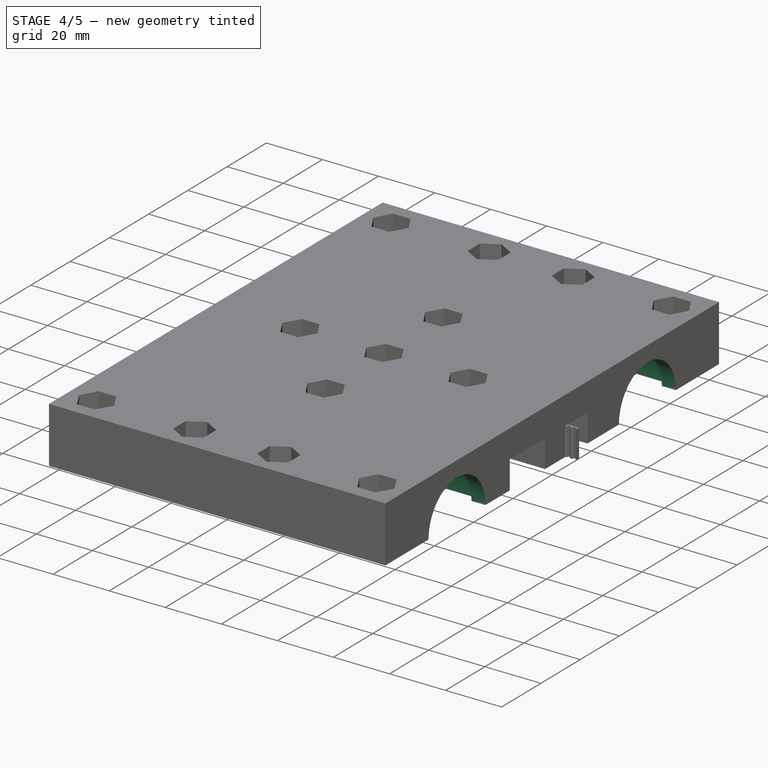
[diagram: stage 4 of 5 — iso view after this stage's code; geometry added in this stage tinted green]
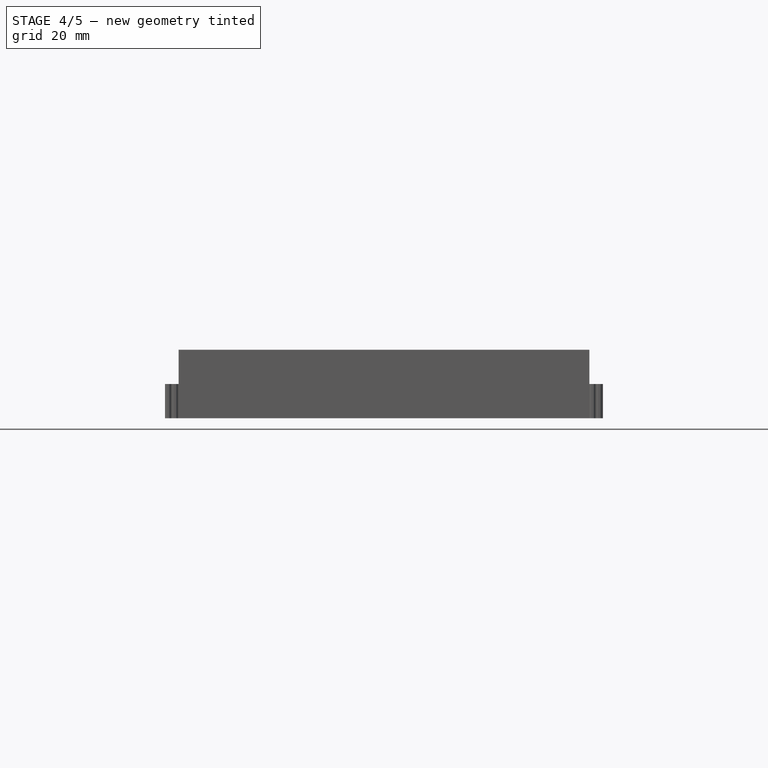
[diagram: stage 4 of 5 — front view after this stage's code; geometry added in this stage tinted green]
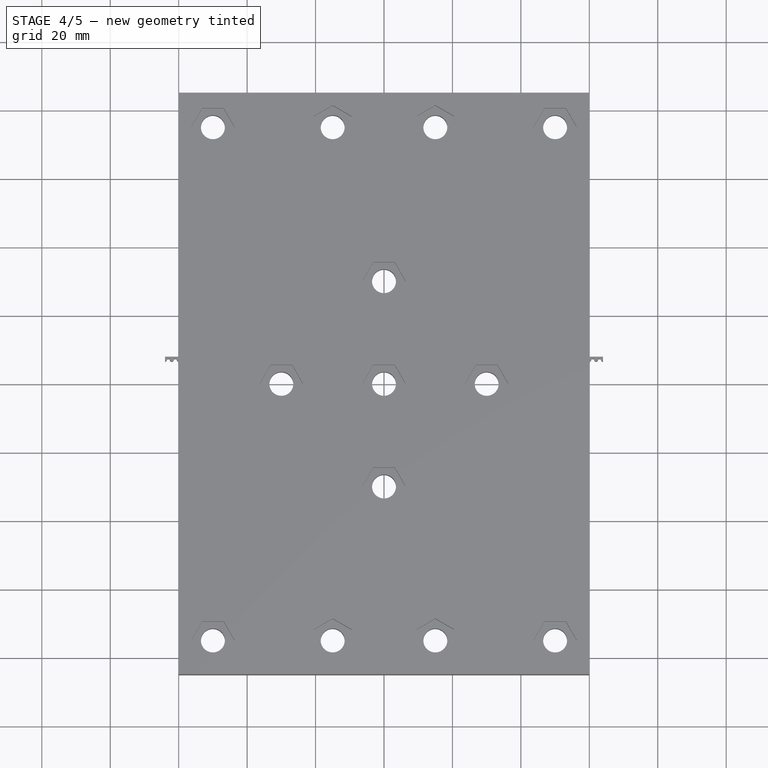
[diagram: stage 4 of 5 — top view after this stage's code; geometry added in this stage tinted green]
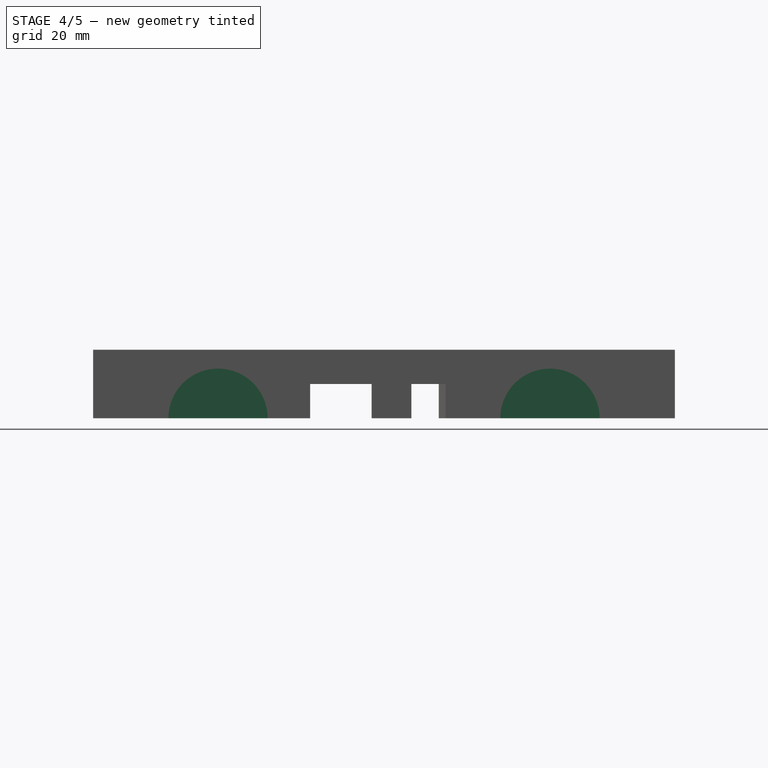
[diagram: stage 4 of 5 — right view after this stage's code; geometry added in this stage tinted green]
FEATURE [Sketcher::SketchObject] Sketch004  label="rod_holes_1_sketch"
  Placement = pos=(-60,0,0) rot=(0.57735,-0.57735,-0.57735;2.0944rad)
  Support = -> Pocket002 [Face2]
  expr: Constraints[7] = prop.rod_hole_r
  expr: Constraints[3] = prop.rod_bush_space
  sketch-geometry (3):
    g0: LineSegment [constr] StartX=-48.5 StartY=0 StartZ=0 EndX=48.5 EndY=0 EndZ=0
    g1: Circle CenterX=-48.5 CenterY=0 CenterZ=0 NormalX=0 NormalY=0 NormalZ=1 Radius=14.5
    g2: Circle CenterX=48.5 CenterY=0 CenterZ=0 NormalX=0 NormalY=0 NormalZ=1 Radius=14.5
  constraints (8):
    c: PointOnObject(g0,g-1)
    c: PointOnObject(g0,g-1)
    c: Symmetric(g0,g0,g-2)
    c: DistanceX(g0,g0) = 97
    c: Coincident(g1,g0)
    c: Coincident(g2,g0)
    c: Equal(g1,g2)
    c: Radius(g1) = 14.5
FEATURE [PartDesign::Pocket] Pocket003  label="rod_holes_1_pocket"
  Length = 5
  Sketch = -> Sketch004
  Type = 0
  expr: Length = prop.rod_hole_d
FEATURE [Sketcher::SketchObject] Sketch005  label="bushing_hole_1_sketch"
  Placement = pos=(-55,0,0) rot=(0.57735,-0.57735,-0.57735;2.0944rad)
  Support = -> Pocket003 [Face18]
  expr: Constraints[7] = prop.bush_r
  expr: Constraints[2] = prop.rod_bush_space
  sketch-geometry (3):
    g0: LineSegment [constr] StartX=-48.5 StartY=0 StartZ=0 EndX=48.5 EndY=0 EndZ=0
    g1: Circle CenterX=-48.5 CenterY=0 CenterZ=0 NormalX=0 NormalY=0 NormalZ=1 Radius=17.1
    g2: Circle CenterX=48.5 CenterY=0 CenterZ=0 NormalX=0 NormalY=0 NormalZ=1 Radius=17.1
  constraints (8):
    c: PointOnObject(g0,g-1)
    c: PointOnObject(g0,g-1)
    c: DistanceX(g0,g0) = 97
    c: Symmetric(g0,g0,g-2)
    c: Coincident(g1,g0)
    c: Coincident(g2,g0)
    c: Equal(g1,g2)
    c: Radius(g1) = 17.1
FEATURE [PartDesign::Pocket] Pocket004  label="bushing_hole_1_pocket"
  Length = 33
  Sketch = -> Sketch005
  Type = 0
  expr: Length = prop.bush_l
FEATURE [Sketcher::SketchObject] Sketch006  label="rod_holes_2_sketch"
  Placement = pos=(60,0,0) rot=(0.57735,0.57735,0.57735;2.0944rad)
  Support = -> Pocket004 [Face3]
  expr: Constraints[7] = prop.rod_hole_r
  expr: Constraints[3] = prop.rod_bush_space
  sketch-geometry (3):
    g0: LineSegment [constr] StartX=-48.5 StartY=0 StartZ=0 EndX=48.5 EndY=0 EndZ=0
    g1: Circle CenterX=-48.5 CenterY=0 CenterZ=0 NormalX=0 NormalY=0 NormalZ=1 Radius=14.5
    g2: Circle CenterX=48.5 CenterY=0 CenterZ=0 NormalX=0 NormalY=0 NormalZ=1 Radius=14.5
  constraints (8):
    c: PointOnObject(g0,g-1)
    c: Horizontal(g0)
    c: Symmetric(g0,g0,g-2)
    c: DistanceX(g0,g0) = 97
    c: Coincident(g1,g0)
    c: Coincident(g2,g0)
    c: Equal(g1,g2)
    c: Radius(g1) = 14.5
FEATURE [PartDesign::Pocket] Pocket005  label="rod_holes_2_pocket"
  Length = 5
  Sketch = -> Sketch006
  Type = 0
  expr: Length = prop.rod_hole_d
FEATURE [Sketcher::SketchObject] Sketch007  label="bushing_holes_2_sketch"
  Placement = pos=(55,0,0) rot=(0.57735,0.57735,0.57735;2.0944rad)
  Support = -> Pocket005 [Face107]
  expr: Constraints[7] = prop.bush_r
  expr: Constraints[3] = prop.rod_bush_space
  sketch-geometry (3):
    g0: LineSegment [constr] StartX=-48.5 StartY=0 StartZ=0 EndX=48.5 EndY=0 EndZ=0
    g1: Circle CenterX=-48.5 CenterY=0 CenterZ=0 NormalX=0 NormalY=0 NormalZ=1 Radius=17.1
    g2: Circle CenterX=48.5 CenterY=0 CenterZ=0 NormalX=0 NormalY=0 NormalZ=1 Radius=17.1
  constraints (8):
    c: PointOnObject(g0,g-1)
    c: Horizontal(g0)
    c: Symmetric(g0,g0,g-2)
    c: DistanceX(g0,g0) = 97
    c: Coincident(g1,g0)
    c: Coincident(g2,g0)
    c: Equal(g1,g2)
    c: Radius(g1) = 17.1
FEATURE [PartDesign::Pocket] Pocket006  label="bushing_holes_2_pocket"
  Length = 33
  Sketch = -> Sketch007
  Type = 0
  expr: Length = prop.bush_l
FEATURE [Sketcher::SketchObject] Sketch008  label="bolt_holes_1_side_1_sketch"
  Placement = pos=(0,85,0) rot=(0,0.707107,0.707107;3.14159rad)
  Support = -> Pocket006 [Face1]
  expr: Constraints[9] = prop.bolt_rad
  expr: Constraints[3] = prop.nut_bolt_space
  sketch-geometry (4):
    g0: LineSegment [constr] StartX=-30 StartY=0 StartZ=0 EndX=30 EndY=0 EndZ=0
    g1: Circle CenterX=-30 CenterY=0 CenterZ=0 NormalX=0 NormalY=0 NormalZ=1 Radius=3.5
    g2: Circle CenterX=30 CenterY=0 CenterZ=0 NormalX=0 NormalY=0 NormalZ=1 Radius=3.5
    g3: Circle CenterX=0 CenterY=0 CenterZ=0 NormalX=0 NormalY=0 NormalZ=1 Radius=3.5
  constraints (10):
    c: PointOnObject(g0,g-1)
    c: PointOnObject(g0,g-1)
    c: Symmetric(g0,g0,g-2)
    c: DistanceX(g0,g0) = 60
    c: Coincident(g1,g0)
    c: Coincident(g2,g0)
    c: Equal(g1,g2)
    c: Coincident(g3,g-1)
    c: Equal(g3,g1)
    c: Radius(g1) = 3.5
FEATURE [PartDesign::Pocket] Pocket007  label="bolt_holes_1_side_1_pocket"
  Length = 8
  Sketch = -> Sketch008
  Type = 0
  expr: Length = prop.bolt_side_d
FEATURE [Sketcher::SketchObject] Sketch009  label="nutcatchers_side_1_sketch"
  Placement = pos=(0,77,0) rot=(0,0.707107,0.707107;3.14159rad)
  Support = -> Pocket007 [Face9]
  expr: Constraints[63] = prop.nut_rad
  expr: Constraints[3] = prop.nut_bolt_space
  sketch-geometry (22):
    g0: LineSegment [constr] StartX=-30 StartY=0 StartZ=0 EndX=30 EndY=0 EndZ=0
    g1: LineSegment StartX=-33.15 StartY=5.45596 StartZ=0 EndX=-36.3 EndY=0 EndZ=0
    g2: LineSegment StartX=-36.3 StartY=0 StartZ=0 EndX=-33.15 EndY=-5.45596 EndZ=0
    g3: LineSegment StartX=-33.15 StartY=-5.45596 StartZ=0 EndX=-26.85 EndY=-5.45596 EndZ=0
    g4: LineSegment StartX=-26.85 StartY=-5.45596 StartZ=0 EndX=-23.7 EndY=0 EndZ=0
    g5: LineSegment StartX=-23.7 StartY=0 StartZ=0 EndX=-26.85 EndY=5.45596 EndZ=0
    g6: LineSegment StartX=-26.85 StartY=5.45596 StartZ=0 EndX=-33.15 EndY=5.45596 EndZ=0
    g7: Circle [constr] CenterX=-30 CenterY=0 CenterZ=0 NormalX=0 NormalY=0 NormalZ=1 Radius=6.3
    g8: LineSegment StartX=3.15 StartY=5.45596 StartZ=0 EndX=-3.15 EndY=5.45596 EndZ=0
    g9: LineSegment StartX=-3.15 StartY=5.45596 StartZ=0 EndX=-6.3 EndY=0 EndZ=0
    g10: LineSegment StartX=-6.3 StartY=0 StartZ=0 EndX=-3.15 EndY=-5.45596 EndZ=0
    g11: LineSegment StartX=-3.15 StartY=-5.45596 StartZ=0 EndX=3.15 EndY=-5.45596 EndZ=0
    g12: LineSegment StartX=3.15 StartY=-5.45596 StartZ=0 EndX=6.3 EndY=0 EndZ=0
    g13: LineSegment StartX=6.3 StartY=0 StartZ=0 EndX=3.15 EndY=5.45596 EndZ=0
    g14: Circle [constr] CenterX=0 CenterY=0 CenterZ=0 NormalX=0 NormalY=0 NormalZ=1 Radius=6.3
    g15: LineSegment StartX=33.15 StartY=5.45596 StartZ=0 EndX=26.85 EndY=5.45596 EndZ=0
    g16: LineSegment StartX=26.85 StartY=5.45596 StartZ=0 EndX=23.7 EndY=0 EndZ=0
    g17: LineSegment StartX=23.7 StartY=0 StartZ=0 EndX=26.85 EndY=-5.45596 EndZ=0
    g18: LineSegment StartX=26.85 StartY=-5.45596 StartZ=0 EndX=33.15 EndY=-5.45596 EndZ=0
    g19: LineSegment StartX=33.15 StartY=-5.45596 StartZ=0 EndX=36.3 EndY=0 EndZ=0
    g20: LineSegment StartX=36.3 StartY=0 StartZ=0 EndX=33.15 EndY=5.45596 EndZ=0
    g21: Circle [constr] CenterX=30 CenterY=0 CenterZ=0 NormalX=0 NormalY=0 NormalZ=1 Radius=6.3
  constraints (52):
    c: PointOnObject(g0,g-1)
    c: Horizontal(g0)
    c: Symmetric(g0,g0,g-2)
    c: DistanceX(g0,g0) = 60
    c: Coincident(g1,g2)
    c: Coincident(g2,g3)
    c: Coincident(g3,g4)
    c: Coincident(g4,g5)
    c: Coincident(g5,g6)
    c: Coincident(g6,g1)
    c: Equal(g1, g2-g6) x5
    c: PointOnObject(g1,g7)
    c: PointOnObject(g2,g7)
    c: PointOnObject(g3,g7)
    c: PointOnObject(g4,g7)
    c: PointOnObject(g5,g7)
    c: PointOnObject(g6,g7)
    c: Coincident(g7,g0)
    c: Horizontal(g6)
    c: Coincident(g8,g9)
    c: Coincident(g9,g10)
    c: Coincident(g10,g11)
    c: Coincident(g11,g12)
    c: Coincident(g12,g13)
    c: Coincident(g13,g8)
    c: Equal(g8, g9-g13) x5
    c: PointOnObject(g8,g14)
    c: PointOnObject(g9,g14)
    c: PointOnObject(g10,g14)
    c: PointOnObject(g11,g14)
    c: PointOnObject(g12,g14)
    c: PointOnObject(g13,g14)
    c: Coincident(g14,g-1)
    c: Horizontal(g8)
    c: Coincident(g15,g16)
    c: Coincident(g16,g17)
    c: Coincident(g17,g18)
    c: Coincident(g18,g19)
    c: Coincident(g19,g20)
    c: Coincident(g20,g15)
    c: Equal(g15, g16-g20) x5
    c: PointOnObject(g15,g21)
    c: PointOnObject(g16,g21)
    c: PointOnObject(g17,g21)
    c: PointOnObject(g18,g21)
    c: PointOnObject(g19,g21)
    c: PointOnObject(g20,g21)
    c: Coincident(g21,g0)
    c: Horizontal(g15)
    c: Equal(g7,g14)
    c: Equal(g14,g21)
    c: Radius(g7) = 6.3
FEATURE [PartDesign::Pocket] Pocket008  label="nutcatchers_side_1_pocket"
  Length = 6.8
  Sketch = -> Sketch009
  Type = 0
  expr: Length = prop.nut_d
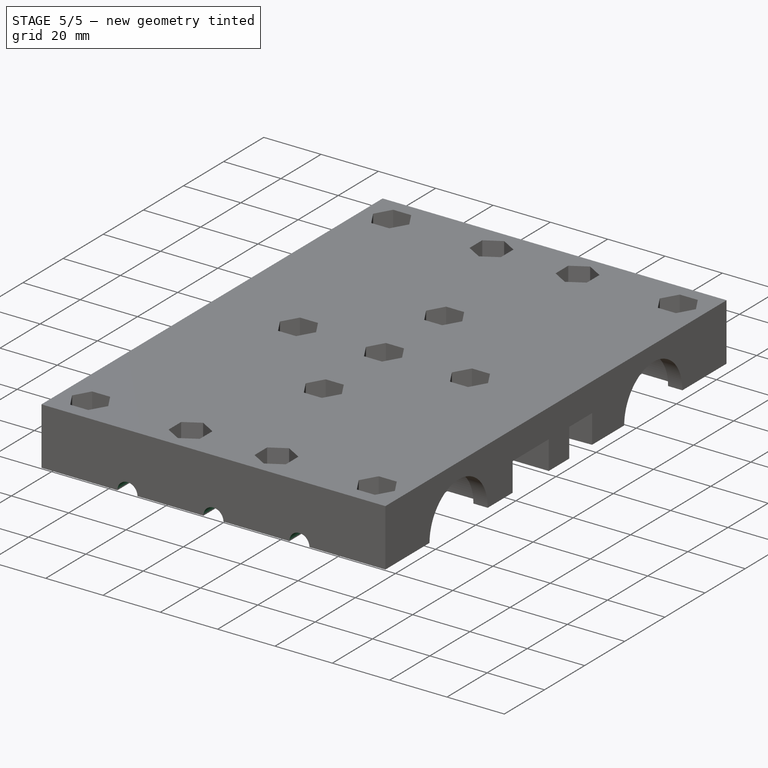
[diagram: stage 5 of 5 — iso view after this stage's code; geometry added in this stage tinted green]
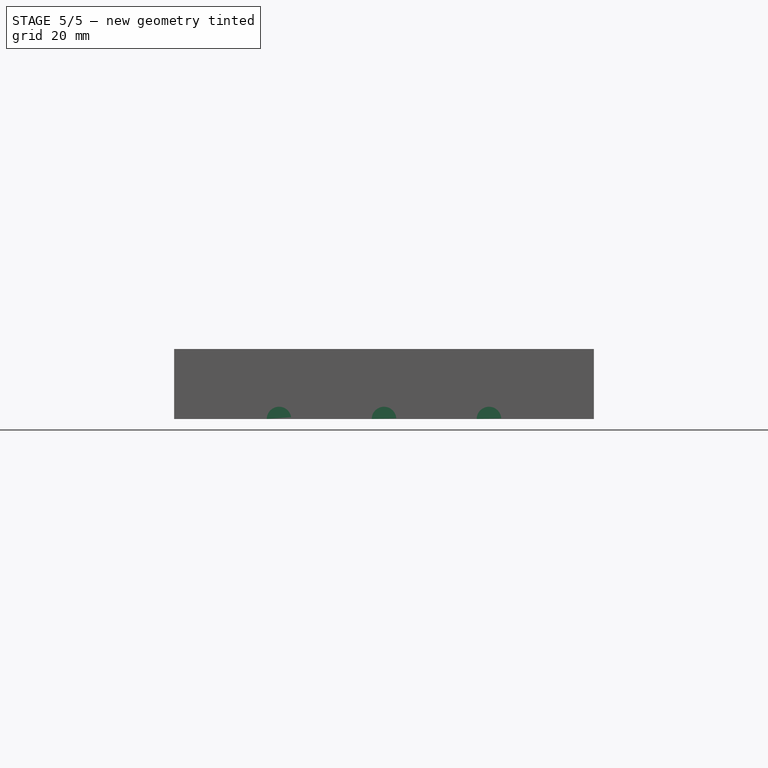
[diagram: stage 5 of 5 — front view after this stage's code; geometry added in this stage tinted green]
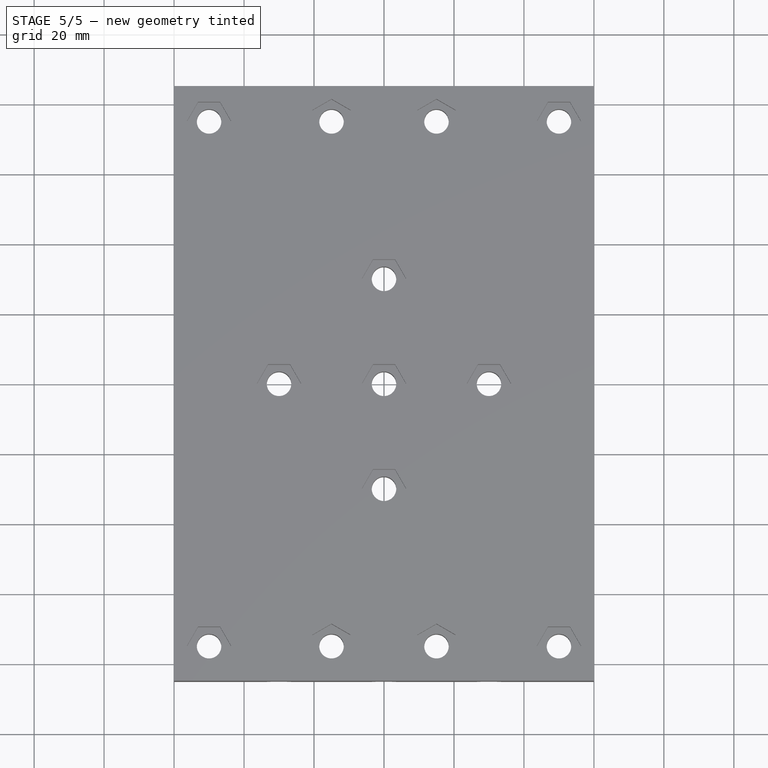
[diagram: stage 5 of 5 — top view after this stage's code; geometry added in this stage tinted green]
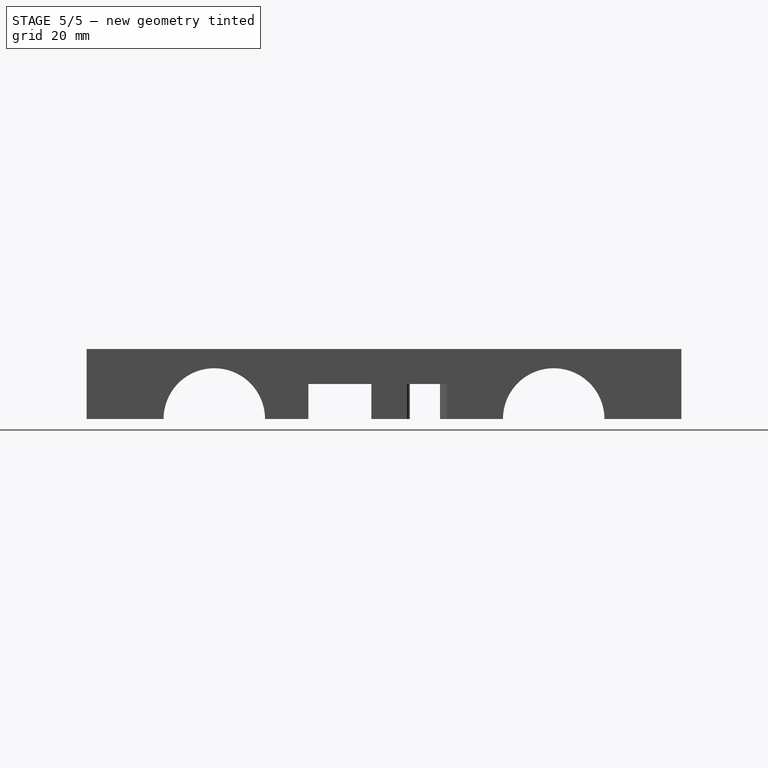
[diagram: stage 5 of 5 — right view after this stage's code; geometry added in this stage tinted green]
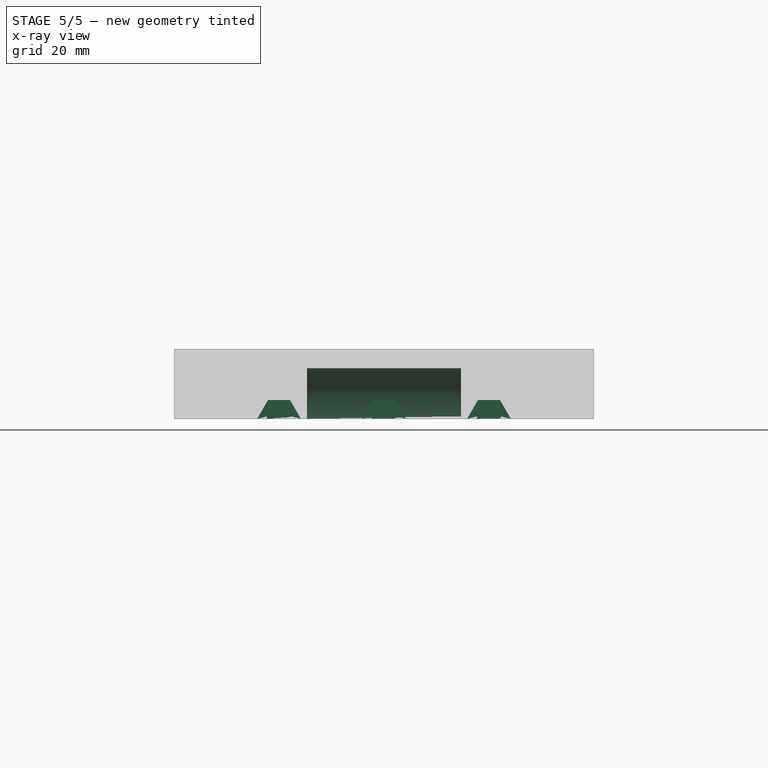
[diagram: stage 5 of 5 — x-ray composite at the front view; earlier geometry ghosted, this stage's added geometry solid]
FEATURE [Sketcher::SketchObject] Sketch010  label="bolt_holes_2_side_1_sketch"
  Placement = pos=(0,70.2,0) rot=(0,0.707107,0.707107;3.14159rad)
  Support = -> Pocket008 [Face19]
  expr: Constraints[9] = prop.bolt_rad
  expr: Constraints[3] = prop.nut_bolt_space
  sketch-geometry (4):
    g0: LineSegment [constr] StartX=-30 StartY=0 StartZ=0 EndX=30 EndY=0 EndZ=0
    g1: Circle CenterX=-30 CenterY=0 CenterZ=0 NormalX=0 NormalY=0 NormalZ=1 Radius=3.5
    g2: Circle CenterX=0 CenterY=0 CenterZ=0 NormalX=0 NormalY=0 NormalZ=1 Radius=3.5
    g3: Circle CenterX=30 CenterY=0 CenterZ=0 NormalX=0 NormalY=0 NormalZ=1 Radius=3.5
  constraints (10):
    c: PointOnObject(g0,g-1)
    c: Horizontal(g0)
    c: Symmetric(g0,g0,g-2)
    c: DistanceX(g0,g0) = 60
    c: Coincident(g1,g0)
    c: Coincident(g2,g-1)
    c: Coincident(g3,g0)
    c: Equal(g3,g2)
    c: Equal(g2,g1)
    c: Radius(g1) = 3.5
FEATURE [PartDesign::Pocket] Pocket009  label="bolt_holes_2_side_1_pocket"
  Length = 4
  Sketch = -> Sketch010
  Type = 0
  expr: Length = prop.bolt_side_d_2
FEATURE [Sketcher::SketchObject] Sketch011  label="bolt_holes_1_side_2_sketch"
  Placement = pos=(0,-85,0) rot=(1,0,0;1.5708rad)
  Support = -> Pocket009 [Face50]
  expr: Constraints[3] = prop.nut_bolt_space
  expr: Constraints[9] = prop.bolt_rad
  sketch-geometry (4):
    g0: LineSegment [constr] StartX=-30 StartY=0 StartZ=0 EndX=30 EndY=0 EndZ=0
    g1: Circle CenterX=-30 CenterY=0 CenterZ=0 NormalX=0 NormalY=0 NormalZ=1 Radius=3.5
    g2: Circle CenterX=0 CenterY=0 CenterZ=0 NormalX=0 NormalY=0 NormalZ=1 Radius=3.5
    g3: Circle CenterX=30 CenterY=0 CenterZ=0 NormalX=0 NormalY=0 NormalZ=1 Radius=3.5
  constraints (10):
    c: PointOnObject(g0,g-1)
    c: PointOnObject(g0,g-1)
    c: Symmetric(g0,g0,g-2)
    c: DistanceX(g0,g0) = 60
    c: Coincident(g1,g0)
    c: Coincident(g2,g-1)
    c: Coincident(g3,g0)
    c: Equal(g1,g2)
    c: Equal(g2,g3)
    c: Radius(g1) = 3.5
FEATURE [PartDesign::Pocket] Pocket010  label="bolt_holes_1_side_2_pocket"
  Length = 8
  Sketch = -> Sketch011
  Type = 0
  expr: Length = prop.bolt_side_d
FEATURE [Sketcher::SketchObject] Sketch012  label="nutcatchers_side_2_sketch"
  Placement = pos=(0,-77,0) rot=(1,0,0;1.5708rad)
  Support = -> Pocket010 [Face149]
  expr: Constraints[63] = prop.nut_rad
  expr: Constraints[3] = prop.nut_bolt_space
  sketch-geometry (22):
    g0: LineSegment [constr] StartX=-30 StartY=0 StartZ=0 EndX=30 EndY=0 EndZ=0
    g1: LineSegment StartX=-33.15 StartY=5.45596 StartZ=0 EndX=-36.3 EndY=0 EndZ=0
    g2: LineSegment StartX=-36.3 StartY=0 StartZ=0 EndX=-33.15 EndY=-5.45596 EndZ=0
    g3: LineSegment StartX=-33.15 StartY=-5.45596 StartZ=0 EndX=-26.85 EndY=-5.45596 EndZ=0
    g4: LineSegment StartX=-26.85 StartY=-5.45596 StartZ=0 EndX=-23.7 EndY=0 EndZ=0
    g5: LineSegment StartX=-23.7 StartY=0 StartZ=0 EndX=-26.85 EndY=5.45596 EndZ=0
    g6: LineSegment StartX=-26.85 StartY=5.45596 StartZ=0 EndX=-33.15 EndY=5.45596 EndZ=0
    g7: Circle [constr] CenterX=-30 CenterY=0 CenterZ=0 NormalX=0 NormalY=0 NormalZ=1 Radius=6.3
    g8: LineSegment StartX=3.15 StartY=5.45596 StartZ=0 EndX=-3.15 EndY=5.45596 EndZ=0
    g9: LineSegment StartX=-3.15 StartY=5.45596 StartZ=0 EndX=-6.3 EndY=0 EndZ=0
    g10: LineSegment StartX=-6.3 StartY=0 StartZ=0 EndX=-3.15 EndY=-5.45596 EndZ=0
    g11: LineSegment StartX=-3.15 StartY=-5.45596 StartZ=0 EndX=3.15 EndY=-5.45596 EndZ=0
    g12: LineSegment StartX=3.15 StartY=-5.45596 StartZ=0 EndX=6.3 EndY=0 EndZ=0
    g13: LineSegment StartX=6.3 StartY=0 StartZ=0 EndX=3.15 EndY=5.45596 EndZ=0
    g14: Circle [constr] CenterX=0 CenterY=0 CenterZ=0 NormalX=0 NormalY=0 NormalZ=1 Radius=6.3
    g15: LineSegment StartX=33.15 StartY=5.45596 StartZ=0 EndX=26.85 EndY=5.45596 EndZ=0
    g16: LineSegment StartX=26.85 StartY=5.45596 StartZ=0 EndX=23.7 EndY=0 EndZ=0
    g17: LineSegment StartX=23.7 StartY=0 StartZ=0 EndX=26.85 EndY=-5.45596 EndZ=0
    g18: LineSegment StartX=26.85 StartY=-5.45596 StartZ=0 EndX=33.15 EndY=-5.45596 EndZ=0
    g19: LineSegment StartX=33.15 StartY=-5.45596 StartZ=0 EndX=36.3 EndY=0 EndZ=0
    g20: LineSegment StartX=36.3 StartY=0 StartZ=0 EndX=33.15 EndY=5.45596 EndZ=0
    g21: Circle [constr] CenterX=30 CenterY=0 CenterZ=0 NormalX=0 NormalY=0 NormalZ=1 Radius=6.3
  constraints (52):
    c: PointOnObject(g0,g-1)
    c: PointOnObject(g0,g-1)
    c: Symmetric(g0,g0,g-2)
    c: DistanceX(g0,g0) = 60
    c: Coincident(g1,g2)
    c: Coincident(g2,g3)
    c: Coincident(g3,g4)
    c: Coincident(g4,g5)
    c: Coincident(g5,g6)
    c: Coincident(g6,g1)
    c: Equal(g1, g2-g6) x5
    c: PointOnObject(g1,g7)
    c: PointOnObject(g2,g7)
    c: PointOnObject(g3,g7)
    c: PointOnObject(g4,g7)
    c: PointOnObject(g5,g7)
    c: PointOnObject(g6,g7)
    c: Coincident(g7,g0)
    c: Coincident(g8,g9)
    c: Coincident(g9,g10)
    c: Coincident(g10,g11)
    c: Coincident(g11,g12)
    c: Coincident(g12,g13)
    c: Coincident(g13,g8)
    c: Equal(g8, g9-g13) x5
    c: PointOnObject(g8,g14)
    c: PointOnObject(g9,g14)
    c: PointOnObject(g10,g14)
    c: PointOnObject(g11,g14)
    c: PointOnObject(g12,g14)
    c: PointOnObject(g13,g14)
    c: Coincident(g14,g-1)
    c: Coincident(g15,g16)
    c: Coincident(g16,g17)
    c: Coincident(g17,g18)
    c: Coincident(g18,g19)
    c: Coincident(g19,g20)
    c: Coincident(g20,g15)
    c: Equal(g15, g16-g20) x5
    c: PointOnObject(g15,g21)
    c: PointOnObject(g16,g21)
    c: PointOnObject(g17,g21)
    c: PointOnObject(g18,g21)
    c: PointOnObject(g19,g21)
    c: PointOnObject(g20,g21)
    c: Coincident(g21,g0)
    c: Horizontal(g15)
    c: Horizontal(g8)
    c: Horizontal(g6)
    c: Equal(g7,g14)
    c: Equal(g14,g21)
    c: Radius(g7) = 6.3
FEATURE [PartDesign::Pocket] Pocket011  label="nutcatchers_side_2_pocket"
  Length = 6.8
  Sketch = -> Sketch012
  Type = 0
  expr: Length = prop.nut_d
FEATURE [Sketcher::SketchObject] Sketch013  label="bolt_holes_2_side_2_sketch"
  Placement = pos=(0,-70.2,0) rot=(1,0,0;1.5708rad)
  Support = -> Pocket011 [Face157]
  expr: Constraints[9] = prop.bolt_rad
  expr: Constraints[3] = prop.nut_bolt_space
  sketch-geometry (4):
    g0: LineSegment [constr] StartX=-30 StartY=0 StartZ=0 EndX=30 EndY=0 EndZ=0
    g1: Circle CenterX=-30 CenterY=0 CenterZ=0 NormalX=0 NormalY=0 NormalZ=1 Radius=3.5
    g2: Circle CenterX=0 CenterY=0 CenterZ=0 NormalX=0 NormalY=0 NormalZ=1 Radius=3.5
    g3: Circle CenterX=30 CenterY=0 CenterZ=0 NormalX=0 NormalY=0 NormalZ=1 Radius=3.5
  constraints (10):
    c: PointOnObject(g0,g-1)
    c: PointOnObject(g0,g-1)
    c: Symmetric(g0,g0,g-2)
    c: DistanceX(g0,g0) = 60
    c: Coincident(g1,g0)
    c: Coincident(g2,g-1)
    c: Coincident(g3,g0)
    c: Equal(g3,g2)
    c: Equal(g2,g1)
    c: Radius(g1) = 3.5
FEATURE [PartDesign::Pocket] Pocket012  label="bolt_holes_2_side_2_pocket"
  Length = 4
  Sketch = -> Sketch013
  Type = 0
  expr: Length = prop.bolt_side_d_2
FEATURE [Part::Cut] Cut  label="belt_holder_teeth_cut"
  Base = -> Pocket012
  Tool = -> Fusion008
FEATURE [Sketcher::SketchObject] Sketch015  label="rod_passage_sketch"
  Placement = pos=(22,0,0) rot=(0.57735,0.57735,0.57735;2.0944rad)
  Support = -> Cut [Face622]
  expr: Constraints[7] = prop.rod_hole_r
  expr: Constraints[3] = prop.rod_bush_space
  sketch-geometry (3):
    g0: LineSegment [constr] StartX=-48.5 StartY=0 StartZ=0 EndX=48.5 EndY=0 EndZ=0
    g1: Circle CenterX=-48.5 CenterY=0 CenterZ=0 NormalX=0 NormalY=0 NormalZ=1 Radius=14.5
    g2: Circle CenterX=48.5 CenterY=0 CenterZ=0 NormalX=0 NormalY=0 NormalZ=1 Radius=14.5
  constraints (8):
    c: PointOnObject(g0,g-1)
    c: Horizontal(g0)
    c: Symmetric(g0,g0,g-2)
    c: DistanceX(g0,g0) = 97
    c: Coincident(g1,g0)
    c: Coincident(g2,g0)
    c: Equal(g1,g2)
    c: Radius(g1) = 14.5
FEATURE [PartDesign::Pocket] Pocket013  label="rod_passage_pocket"
  Length = 5
  Sketch = -> Sketch015
  Type = 1
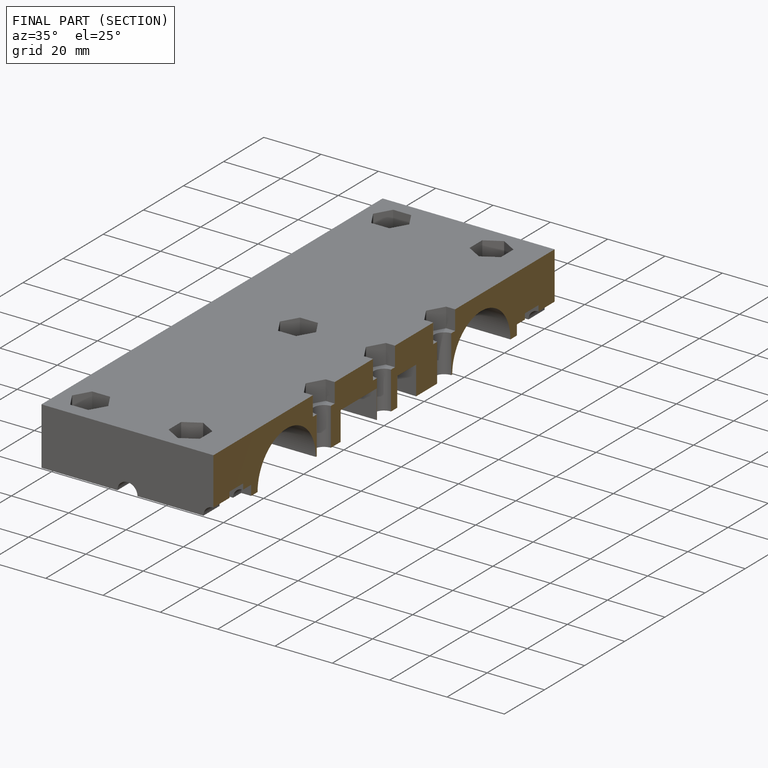
[diagram: finished part — half-section view (interior)]
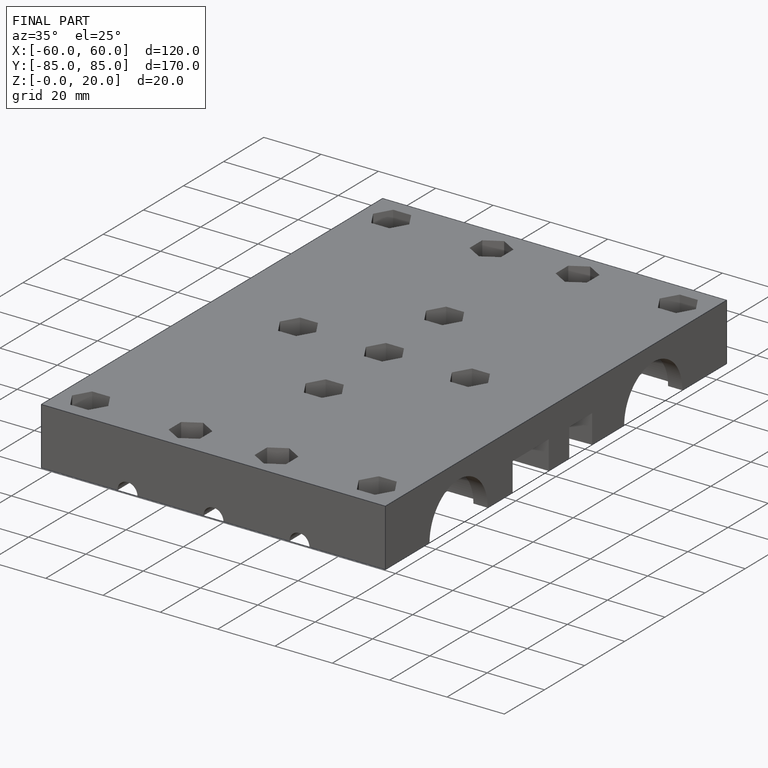
[diagram: finished part — iso view with bounding-box wireframe]
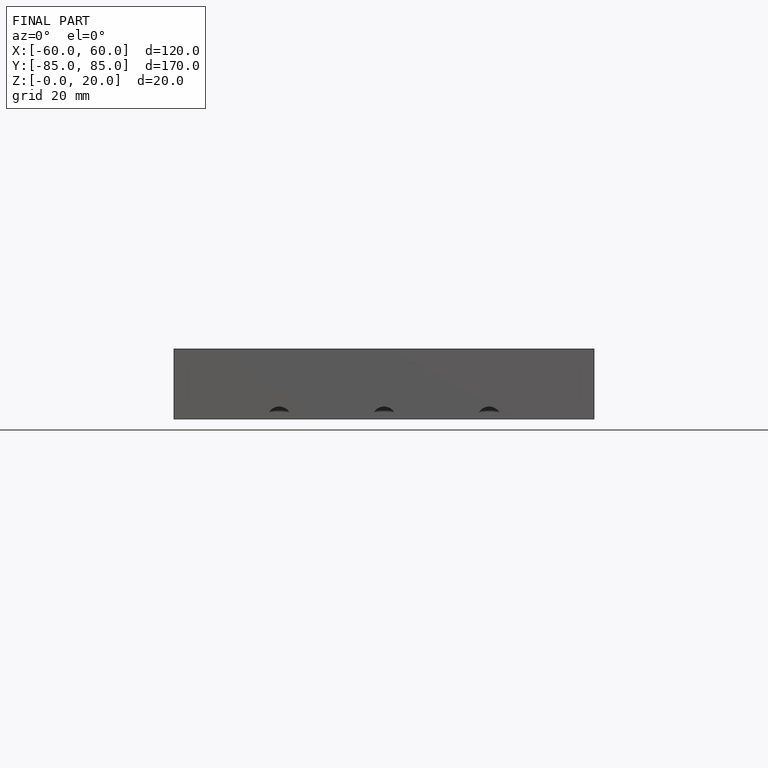
[diagram: finished part — front view with bounding-box wireframe]
